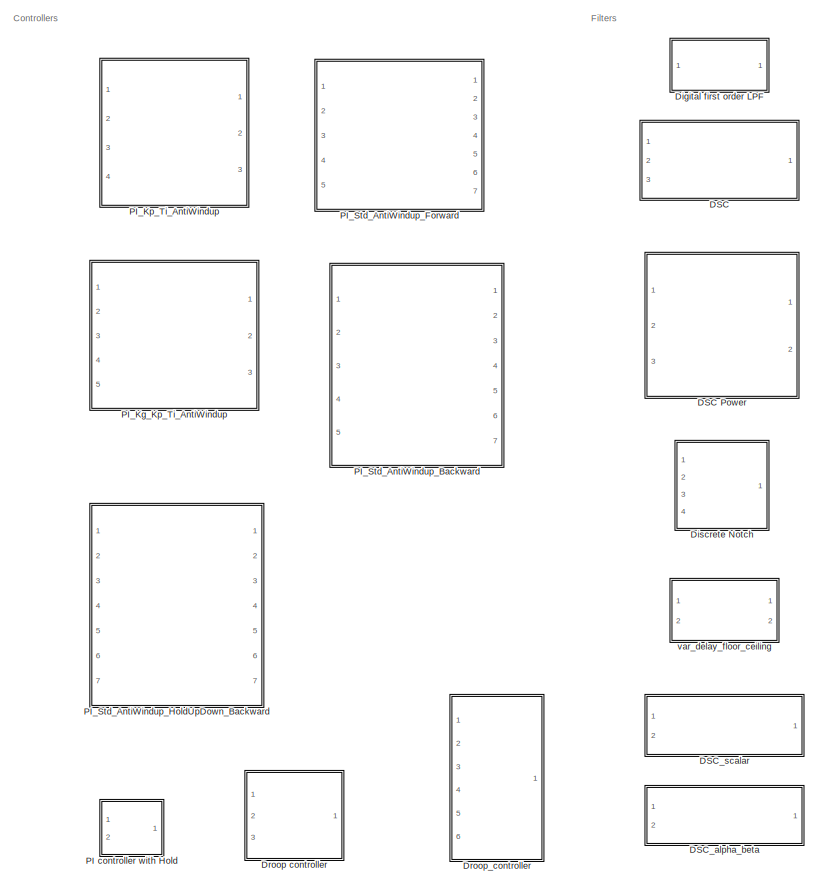
[diagram: root canvas - part 1/2, left side, full height]
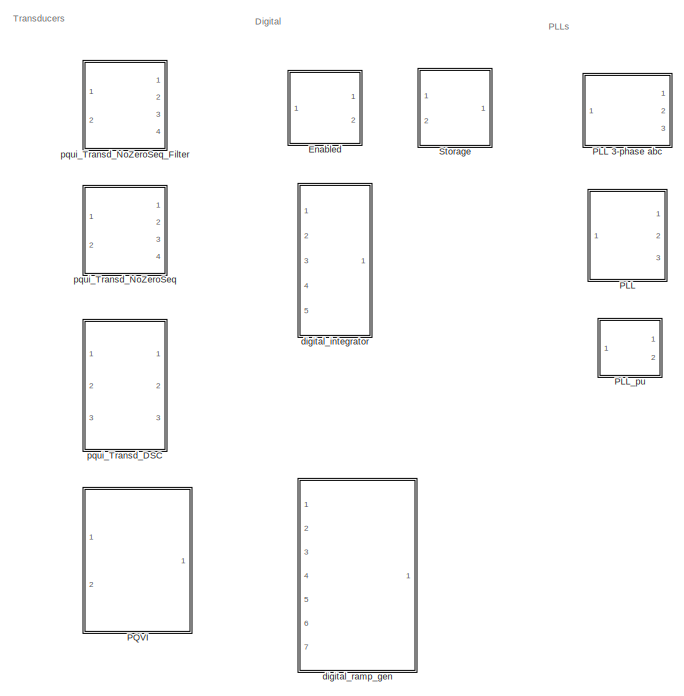
[diagram: root canvas - part 2/2, right side, full height]
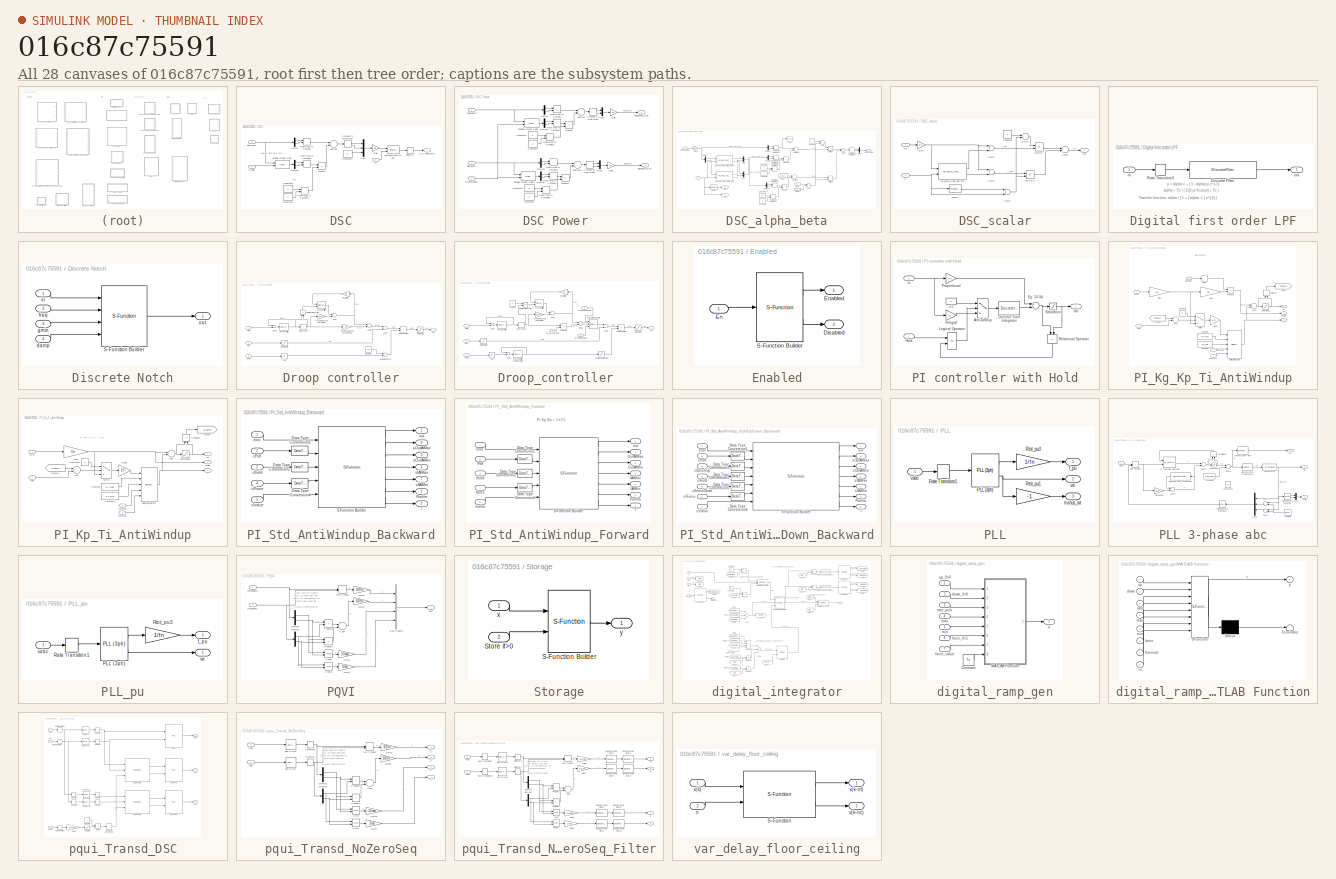
[diagram: thumbnail index - all 28 canvases of the model, root first then tree order]
MODEL slx_016c87c75591
KIND library
CONFIG AbsTol = auto
CONFIG EnableMultiTasking = off
CONFIG FixedStep = auto
CONFIG MaxStep = auto
CONFIG MinStep = auto
CONFIG RelTol = 1e-3
CONFIG SampleTimeConstraint = Unconstrained
CONFIG Solver = VariableStepAuto
CONFIG SolverName = VariableStepAuto
CONFIG StartTime = 0.0
CONFIG StopTime = 10.0
BLOCK [SubSystem] DSC
  Ports = [3, 1]
  RequestExecContextInheritance = off
BLOCK [SubSystem] DSC Power 
  Ports = [3, 2]
  RequestExecContextInheritance = off
BLOCK [ComplexToRealImag] DSC Power /Complex to Real-Imag
  Ports = [1, 2]
BLOCK [ComplexToRealImag] DSC Power /Complex to Real-Imag1
  Ports = [1, 2]
BLOCK [Constant] DSC Power /Constant3
  Value = 0
BLOCK [Constant] DSC Power /Constant4
BLOCK [Constant] DSC Power /Constant5
  Value = 0
BLOCK [Constant] DSC Power /Constant6
BLOCK [Demux] DSC Power /Demux
  DisplayOption = bar
  Outputs = 2
  Ports = [1, 2]
BLOCK [Demux] DSC Power /Demux2
  DisplayOption = bar
  Outputs = 2
  Ports = [1, 2]
BLOCK [Demux] DSC Power /Demux3
  DisplayOption = bar
  Outputs = 2
  Ports = [1, 2]
BLOCK [Demux] DSC Power /Demux5
  DisplayOption = bar
  Outputs = 2
  Ports = [1, 2]
BLOCK [Gain] DSC Power /Gain
  Gain = 0.5
  OutDataTypeStr = Inherit: Inherit via internal rule
  ParamDataTypeStr = Inherit: Inherit via internal rule
  SaturateOnIntegerOverflow = off
BLOCK [Gain] DSC Power /Gain1
  Gain = 0.5
  OutDataTypeStr = Inherit: Inherit via internal rule
  ParamDataTypeStr = Inherit: Inherit via internal rule
  SaturateOnIntegerOverflow = off
BLOCK [Mux] DSC Power /Mux1
  DisplayOption = bar
  Inputs = [1 1]
  Ports = [2, 1]
BLOCK [Mux] DSC Power /Mux2
  DisplayOption = bar
  Inputs = [1 1]
  Ports = [2, 1]
BLOCK [Inport] DSC Power /Nsamp_delay
  IconDisplay = Port number
  Port = 3
BLOCK [Product] DSC Power /Product
  InputSameDT = off
  OutDataTypeStr = Inherit: Inherit via internal rule
  Ports = [2, 1]
  RndMeth = Floor
  SaturateOnIntegerOverflow = off
BLOCK [Product] DSC Power /Product1
  InputSameDT = off
  OutDataTypeStr = Inherit: Inherit via internal rule
  Ports = [2, 1]
  RndMeth = Floor
  SaturateOnIntegerOverflow = off
BLOCK [RealImagToComplex] DSC Power /Real-Imag to Complex
  Ports = [2, 1]
BLOCK [RealImagToComplex] DSC Power /Real-Imag to Complex1
  Ports = [2, 1]
BLOCK [RealImagToComplex] DSC Power /Real-Imag to Complex2
  Ports = [2, 1]
BLOCK [RealImagToComplex] DSC Power /Real-Imag to Complex3
  Ports = [2, 1]
BLOCK [RealImagToComplex] DSC Power /Real-Imag to Complex4
  Ports = [2, 1]
BLOCK [RealImagToComplex] DSC Power /Real-Imag to Complex5
  Ports = [2, 1]
BLOCK [Sum] DSC Power /Subtract
  InputSameDT = off
  OutDataTypeStr = Inherit: Inherit via internal rule
  Ports = [2, 1]
  SaturateOnIntegerOverflow = off
BLOCK [Sum] DSC Power /Subtract1
  InputSameDT = off
  OutDataTypeStr = Inherit: Inherit via internal rule
  Ports = [2, 1]
  SaturateOnIntegerOverflow = off
BLOCK [Delay] DSC Power /Variable Integer Delay
  DelayLength = 200
  DelayLengthSource = Input port
  DelayLengthUpperLimit = 500
  InputPortMap = u0,p1
  Ports = [2, 1]
  SampleTime = Ts
BLOCK [Delay] DSC Power /Variable Integer Delay1
  DelayLength = 200
  DelayLengthSource = Input port
  DelayLengthUpperLimit = 500
  InputPortMap = u0,p1
  Ports = [2, 1]
  SampleTime = Ts
BLOCK [Inport] DSC Power /ialphabeta
  IconDisplay = Port number
  Port = 2
BLOCK [Outport] DSC Power /ialphabeta_DSC
  IconDisplay = Port number
  Port = 2
BLOCK [Inport] DSC Power /valphabeta
  IconDisplay = Port number
BLOCK [Outport] DSC Power /valphabeta_DSC
  IconDisplay = Port number
BLOCK [Reference] DSC/Alpha-Beta-Zero to dq0  REF=powerlib_meascontrol/Transformations/Alpha-Beta-Zero
to dq0
  Ports = [2, 1]
  SourceBlock = powerlib_meascontrol/Transformations/Alpha-Beta-Zero\nto dq0
  SourceProductBaseCode = PS
  SourceProductName = Simscape Power Systems
  SourceType = Alpha-Beta-Zero to dq0 Transformation
BLOCK [ComplexToRealImag] DSC/Complex to Real-Imag
  Ports = [1, 2]
BLOCK [Constant] DSC/Constant1
  Value = 0
BLOCK [Constant] DSC/Constant3
  Value = 0
BLOCK [Constant] DSC/Constant4
BLOCK [Outport] DSC/DSC_alpha_beta
  IconDisplay = Port number
BLOCK [Demux] DSC/Demux
  DisplayOption = bar
  Outputs = 2
  Ports = [1, 2]
BLOCK [Demux] DSC/Demux1
  DisplayOption = bar
  Outputs = 2
  Ports = [1, 2]
BLOCK [Gain] DSC/Gain
  Gain = 0.5
  OutDataTypeStr = Inherit: Inherit via internal rule
  ParamDataTypeStr = Inherit: Inherit via internal rule
  SaturateOnIntegerOverflow = off
BLOCK [Mux] DSC/Mux1
  DisplayOption = bar
  Inputs = [1 1 1]
  Ports = [3, 1]
BLOCK [Inport] DSC/N_delay
  IconDisplay = Port number
  Port = 2
BLOCK [Product] DSC/Product
  InputSameDT = off
  OutDataTypeStr = Inherit: Inherit via internal rule
  Ports = [2, 1]
  RndMeth = Floor
  SaturateOnIntegerOverflow = off
BLOCK [RealImagToComplex] DSC/Real-Imag to Complex
  Ports = [2, 1]
BLOCK [RealImagToComplex] DSC/Real-Imag to Complex1
  Ports = [2, 1]
BLOCK [RealImagToComplex] DSC/Real-Imag to Complex2
  Ports = [2, 1]
BLOCK [Selector] DSC/Selector4
  IndexOptions = Index vector (dialog)
  Indices = [1 2]
  InputPortWidth = 3
  OutputSizes = 1
  Ports = [1, 1]
BLOCK [Sum] DSC/Subtract
  InputSameDT = off
  OutDataTypeStr = Inherit: Inherit via internal rule
  Ports = [2, 1]
  SaturateOnIntegerOverflow = off
BLOCK [Delay] DSC/Variable Integer Delay
  DelayLength = 200
  DelayLengthSource = Input port
  DelayLengthUpperLimit = 500
  InputPortMap = u0,p1
  Ports = [2, 1]
  SampleTime = Ts
BLOCK [Inport] DSC/alpha_beta
  IconDisplay = Port number
BLOCK [Inport] DSC/wt
  IconDisplay = Port number
  Port = 3
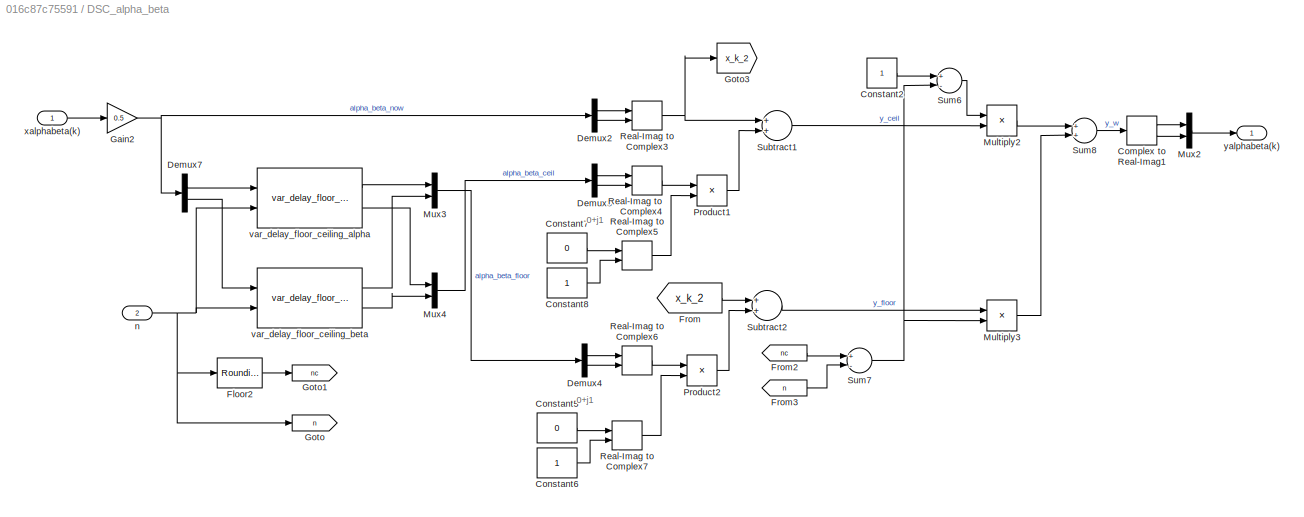
BLOCK [SubSystem] DSC_alpha_beta
  Ports = [2, 1]
  RequestExecContextInheritance = off
BLOCK [ComplexToRealImag] DSC_alpha_beta/Complex to Real-Imag1
  Ports = [1, 2]
BLOCK [Constant] DSC_alpha_beta/Constant2
BLOCK [Constant] DSC_alpha_beta/Constant5
  Value = 0
BLOCK [Constant] DSC_alpha_beta/Constant6
BLOCK [Constant] DSC_alpha_beta/Constant7
  Value = 0
BLOCK [Constant] DSC_alpha_beta/Constant8
BLOCK [Demux] DSC_alpha_beta/Demux2
  DisplayOption = bar
  Outputs = 2
  Ports = [1, 2]
BLOCK [Demux] DSC_alpha_beta/Demux3
  DisplayOption = bar
  Outputs = 2
  Ports = [1, 2]
BLOCK [Demux] DSC_alpha_beta/Demux4
  DisplayOption = bar
  Outputs = 2
  Ports = [1, 2]
BLOCK [Demux] DSC_alpha_beta/Demux7
  DisplayOption = bar
  Outputs = 2
  Ports = [1, 2]
BLOCK [Rounding] DSC_alpha_beta/Floor2
  Operator = ceil
BLOCK [From] DSC_alpha_beta/From
  GotoTag = x_k_2
BLOCK [From] DSC_alpha_beta/From2
  GotoTag = nc
BLOCK [From] DSC_alpha_beta/From3
  GotoTag = n
BLOCK [Gain] DSC_alpha_beta/Gain2
  Gain = 0.5
  OutDataTypeStr = Inherit: Inherit via internal rule
  ParamDataTypeStr = Inherit: Inherit via internal rule
  SaturateOnIntegerOverflow = off
BLOCK [Goto] DSC_alpha_beta/Goto
  GotoTag = n
BLOCK [Goto] DSC_alpha_beta/Goto1
  GotoTag = nc
BLOCK [Goto] DSC_alpha_beta/Goto3
  GotoTag = x_k_2
BLOCK [Product] DSC_alpha_beta/Multiply2
  InputSameDT = off
  OutDataTypeStr = Inherit: Inherit via internal rule
  Ports = [2, 1]
  RndMeth = Floor
  SaturateOnIntegerOverflow = off
BLOCK [Product] DSC_alpha_beta/Multiply3
  InputSameDT = off
  OutDataTypeStr = Inherit: Inherit via internal rule
  Ports = [2, 1]
  RndMeth = Floor
  SaturateOnIntegerOverflow = off
BLOCK [Mux] DSC_alpha_beta/Mux2
  DisplayOption = bar
  Inputs = [1 1]
  Ports = [2, 1]
BLOCK [Mux] DSC_alpha_beta/Mux3
  DisplayOption = bar
  Inputs = [1 1]
  Ports = [2, 1]
BLOCK [Mux] DSC_alpha_beta/Mux4
  DisplayOption = bar
  Inputs = [1 1]
  Ports = [2, 1]
BLOCK [Product] DSC_alpha_beta/Product1
  InputSameDT = off
  OutDataTypeStr = Inherit: Inherit via internal rule
  Ports = [2, 1]
  RndMeth = Floor
  SaturateOnIntegerOverflow = off
BLOCK [Product] DSC_alpha_beta/Product2
  InputSameDT = off
  OutDataTypeStr = Inherit: Inherit via internal rule
  Ports = [2, 1]
  RndMeth = Floor
  SaturateOnIntegerOverflow = off
BLOCK [RealImagToComplex] DSC_alpha_beta/Real-Imag to Complex3
  Ports = [2, 1]
BLOCK [RealImagToComplex] DSC_alpha_beta/Real-Imag to Complex4
  Ports = [2, 1]
BLOCK [RealImagToComplex] DSC_alpha_beta/Real-Imag to Complex5
  Ports = [2, 1]
BLOCK [RealImagToComplex] DSC_alpha_beta/Real-Imag to Complex6
  Ports = [2, 1]
BLOCK [RealImagToComplex] DSC_alpha_beta/Real-Imag to Complex7
  Ports = [2, 1]
BLOCK [Sum] DSC_alpha_beta/Subtract1
  InputSameDT = off
  OutDataTypeStr = Inherit: Inherit via internal rule
  Ports = [2, 1]
  SaturateOnIntegerOverflow = off
BLOCK [Sum] DSC_alpha_beta/Subtract2
  InputSameDT = off
  OutDataTypeStr = Inherit: Inherit via internal rule
  Ports = [2, 1]
  SaturateOnIntegerOverflow = off
BLOCK [Sum] DSC_alpha_beta/Sum6
  InputSameDT = off
  Inputs = +-
  OutDataTypeStr = Inherit: Inherit via internal rule
  Ports = [2, 1]
  SaturateOnIntegerOverflow = off
BLOCK [Sum] DSC_alpha_beta/Sum7
  InputSameDT = off
  Inputs = +-
  OutDataTypeStr = Inherit: Inherit via internal rule
  Ports = [2, 1]
  SaturateOnIntegerOverflow = off
BLOCK [Sum] DSC_alpha_beta/Sum8
  InputSameDT = off
  OutDataTypeStr = Inherit: Inherit via internal rule
  Ports = [2, 1]
  SaturateOnIntegerOverflow = off
BLOCK [Inport] DSC_alpha_beta/n
  IconDisplay = Port number
  Port = 2
BLOCK [Reference] DSC_alpha_beta/var_delay_floor_ceiling_alpha  REF=pwrsysBasic/var_delay_floor_ceiling
  Ports = [2, 2]
  SourceBlock = pwrsysBasic/var_delay_floor_ceiling
  SourceProductName = NTNU Power Systems
  SourceType = Circular buffer with two variable delays (ceiling and floor)
BLOCK [Reference] DSC_alpha_beta/var_delay_floor_ceiling_beta  REF=pwrsysBasic/var_delay_floor_ceiling
  Ports = [2, 2]
  SourceBlock = pwrsysBasic/var_delay_floor_ceiling
  SourceProductName = NTNU Power Systems
  SourceType = Circular buffer with two variable delays (ceiling and floor)
BLOCK [Inport] DSC_alpha_beta/xalphabeta(k)
  IconDisplay = Port number
BLOCK [Outport] DSC_alpha_beta/yalphabeta(k)
  IconDisplay = Port number
BLOCK [SubSystem] DSC_scalar
  Ports = [2, 1]
  RequestExecContextInheritance = off
BLOCK [Constant] DSC_scalar/Constant
BLOCK [Rounding] DSC_scalar/Floor1
  Operator = ceil
BLOCK [Gain] DSC_scalar/Gain
  Gain = 0.5
  OutDataTypeStr = Inherit: Inherit via internal rule
  ParamDataTypeStr = Inherit: Inherit via internal rule
  SaturateOnIntegerOverflow = off
BLOCK [Product] DSC_scalar/Multiply
  InputSameDT = off
  OutDataTypeStr = Inherit: Inherit via internal rule
  Ports = [2, 1]
  RndMeth = Floor
  SaturateOnIntegerOverflow = off
BLOCK [Product] DSC_scalar/Multiply1
  InputSameDT = off
  OutDataTypeStr = Inherit: Inherit via internal rule
  Ports = [2, 1]
  RndMeth = Floor
  SaturateOnIntegerOverflow = off
BLOCK [Sum] DSC_scalar/Sum1
  InputSameDT = off
  Inputs = +-
  OutDataTypeStr = Inherit: Inherit via internal rule
  Ports = [2, 1]
  SaturateOnIntegerOverflow = off
BLOCK [Sum] DSC_scalar/Sum2
  InputSameDT = off
  Inputs = +-
  OutDataTypeStr = Inherit: Inherit via internal rule
  Ports = [2, 1]
  SaturateOnIntegerOverflow = off
BLOCK [Sum] DSC_scalar/Sum3
  InputSameDT = off
  OutDataTypeStr = Inherit: Inherit via internal rule
  Ports = [2, 1]
  SaturateOnIntegerOverflow = off
BLOCK [Sum] DSC_scalar/Sum4
  InputSameDT = off
  OutDataTypeStr = Inherit: Inherit via internal rule
  Ports = [2, 1]
  SaturateOnIntegerOverflow = off
BLOCK [Sum] DSC_scalar/Sum5
  InputSameDT = off
  OutDataTypeStr = Inherit: Inherit via internal rule
  Ports = [2, 1]
  SaturateOnIntegerOverflow = off
BLOCK [Inport] DSC_scalar/n
  IconDisplay = Port number
  Port = 2
BLOCK [Reference] DSC_scalar/var_delay_floor_ceiling  REF=pwrsysBasic/var_delay_floor_ceiling
  Ports = [2, 2]
  SourceBlock = pwrsysBasic/var_delay_floor_ceiling
  SourceProductName = NTNU Power Systems
  SourceType = Circular buffer with two variable delays (ceiling and floor)
BLOCK [Inport] DSC_scalar/x(k)
  IconDisplay = Port number
BLOCK [Outport] DSC_scalar/y(k)
  IconDisplay = Port number
BLOCK [SubSystem] Digital first order LPF
  Ports = [1, 1]
  RequestExecContextInheritance = off
BLOCK [DiscreteFilter] Digital first order LPF/Discrete Filter
  Denominator = [1 Ts/(1/(2*pi*fcutout)+Ts)-1]
  InitialStates = 2*yini
  InputPortMap = u0
  Numerator = [Ts/(1/(2*pi*fcutout)+Ts)]
  Ports = [1, 1]
  SampleTime = Ts
BLOCK [RateTransition] Digital first order LPF/Rate Transition3
  InitialCondition = yini
  OutPortSampleTime = Ts
BLOCK [Inport] Digital first order LPF/in
  IconDisplay = Port number
BLOCK [Outport] Digital first order LPF/out
  IconDisplay = Port number
BLOCK [SubSystem] Discrete Notch
  Ports = [4, 1]
  RequestExecContextInheritance = off
  TreatAsAtomicUnit = on
BLOCK [S-Function] Discrete Notch/S-Function Builder
  EnableBusSupport = off
  FunctionName = notch
  InitFcn = try, set_param(gcb,'FunctionName','notch'), end
  OpenFcn = sfunctionwizard(gcbh)
  Parameters = Ts
  Ports = [4, 1]
  PreSaveFcn = try, set_param(gcb,'FunctionName','notch'), end
  SFcnIsStateOwnerBlock = off
  SFunctionDeploymentMode = off
  SFunctionModules = notch_wrapper
BLOCK [Inport] Discrete Notch/damp
  IconDisplay = Port number
  Port = 4
BLOCK [Inport] Discrete Notch/freq
  IconDisplay = Port number
  Port = 2
BLOCK [Inport] Discrete Notch/gmin
  IconDisplay = Port number
  Port = 3
BLOCK [Inport] Discrete Notch/in
  IconDisplay = Port number
BLOCK [Outport] Discrete Notch/out
  IconDisplay = Port number
BLOCK [SubSystem] Droop controller
  Ports = [3, 1]
  RequestExecContextInheritance = off
BLOCK [Abs] Droop controller/Abs
  SaturateOnIntegerOverflow = off
  ZeroCross = off
BLOCK [Sum] Droop controller/Avoid div by zero
  InputSameDT = off
  OutDataTypeStr = Inherit: Inherit via internal rule
  Ports = [2, 1]
  SaturateOnIntegerOverflow = off
BLOCK [Inport] Droop controller/Comp
  IconDisplay = Port number
  Port = 3
BLOCK [Product] Droop controller/Compensation
  InputSameDT = off
  Inputs = */
  OutDataTypeStr = Inherit: Inherit via internal rule
  Ports = [2, 1]
  RndMeth = Floor
  SaturateOnIntegerOverflow = off
BLOCK [Constant] Droop controller/Constant
  SampleTime = Ts
  Value = 1e-5
BLOCK [DeadZone] Droop controller/Dead-band
  LowerValue = -DB
  UpperValue = DB
BLOCK [Inport] Droop controller/Delta
  IconDisplay = Port number
BLOCK [DiscreteIntegrator] Droop controller/Low-pass filter
  ICPrevOutput = DiscIntNeverNeededParam
  ICPrevScaledInput = DiscIntNeverNeededParam
  InitialConditionSetting = Auto
  LowerSaturationLimit = Refmin/Kp
  Ports = [1, 1]
  SampleTime = Ts
  UpperSaturationLimit = Refmax/Kp
  gainval = flp
BLOCK [Outport] Droop controller/Out
  IconDisplay = Port number
BLOCK [Saturate] Droop controller/Output Limit
  InputPortMap = u0
  LowerLimit = Refmin
  Ports = [1, 1]
  UpperLimit = Refmax
  ZeroCross = off
BLOCK [Gain] Droop controller/Permanent droop (Proportional)
  Gain = Kp
  OutDataTypeStr = Inherit: Inherit via internal rule
  ParamDataTypeStr = Inherit: Inherit via internal rule
  SaturateOnIntegerOverflow = off
BLOCK [Inport] Droop controller/Ref
  IconDisplay = Port number
  Port = 2
BLOCK [RelationalOperator] Droop controller/Relational Operator
  InputSameDT = off
  Operator = ~=
  OutDataTypeStr = boolean
  Ports = [2, 1]
BLOCK [Gain] Droop controller/Reset time
  Gain = 1/Tr
  OutDataTypeStr = Inherit: Inherit via internal rule
  ParamDataTypeStr = Inherit: Inherit via internal rule
  SaturateOnIntegerOverflow = off
BLOCK [Saturate] Droop controller/Setpoint Limit
  InputPortMap = u0
  LowerLimit = Refmin
  Ports = [1, 1]
  UpperLimit = Refmax
  ZeroCross = off
BLOCK [Sum] Droop controller/Sum1
  InputSameDT = off
  Inputs = --
  OutDataTypeStr = Inherit: Inherit via internal rule
  Ports = [2, 1]
  SaturateOnIntegerOverflow = off
BLOCK [Sum] Droop controller/Sum2
  InputSameDT = off
  OutDataTypeStr = Inherit: Inherit via internal rule
  Ports = [2, 1]
  SaturateOnIntegerOverflow = off
BLOCK [Sum] Droop controller/Sum3
  InputSameDT = off
  Inputs = -+
  OutDataTypeStr = Inherit: Inherit via internal rule
  Ports = [2, 1]
  SaturateOnIntegerOverflow = off
BLOCK [Sum] Droop controller/Sum6
  InputSameDT = off
  Inputs = -+
  OutDataTypeStr = Inherit: Inherit via internal rule
  Ports = [2, 1]
  SaturateOnIntegerOverflow = off
BLOCK [Gain] Droop controller/Transient droop (Derivative)
  Gain = Kd/Tr
  OutDataTypeStr = Inherit: Inherit via internal rule
  ParamDataTypeStr = Inherit: Inherit via internal rule
  SaturateOnIntegerOverflow = off
BLOCK [DiscreteIntegrator] Droop controller/Washout filter
  ExternalReset = level
  ICPrevOutput = DiscIntNeverNeededParam
  ICPrevScaledInput = DiscIntNeverNeededParam
  InitialConditionSetting = Auto
  LimitOutput = on
  LowerSaturationLimit = Refmin
  Ports = [2, 1]
  SampleTime = Ts
  UpperSaturationLimit = Refmax
  gainval = 1
BLOCK [SubSystem] Droop_controller 
  Ports = [6, 1]
  RequestExecContextInheritance = off
BLOCK [Abs] Droop_controller /Abs
  SaturateOnIntegerOverflow = off
  ZeroCross = off
BLOCK [Inport] Droop_controller /Comp
  IconDisplay = Port number
  Port = 6
BLOCK [Product] Droop_controller /Compensation
  InputSameDT = off
  Inputs = */
  OutDataTypeStr = Inherit: Inherit via internal rule
  Ports = [2, 1]
  RndMeth = Floor
  SaturateOnIntegerOverflow = off
BLOCK [Saturate] Droop_controller /Compensation Limit
  InputPortMap = u0
  LowerLimit = Compmin
  Ports = [1, 1]
  UpperLimit = Compmax
  ZeroCross = off
BLOCK [Constant] Droop_controller /Constant
  Value = 0
BLOCK [DeadZone] Droop_controller /Dead-band
  LowerValue = -DB
  UpperValue = DB
BLOCK [Inport] Droop_controller /Delta
  IconDisplay = Port number
BLOCK [Inport] Droop_controller /DroopMaxContrib
  IconDisplay = Port number
  Port = 3
BLOCK [Inport] Droop_controller /DroopMinContrib
  IconDisplay = Port number
  Port = 4
BLOCK [Inport] Droop_controller /Kp_perm_droop
  IconDisplay = Port number
  Port = 2
BLOCK [DiscreteIntegrator] Droop_controller /Low-pass filter
  ICPrevOutput = DiscIntNeverNeededParam
  ICPrevScaledInput = DiscIntNeverNeededParam
  InitialConditionSetting = Auto
  LowerSaturationLimit = Refmin/Kp
  Ports = [1, 1]
  SampleTime = Ts
  UpperSaturationLimit = Refmax/Kp
  gainval = flp*2*pi
BLOCK [DiscreteIntegrator] Droop_controller /Low-pass filter compensation
  ICPrevOutput = DiscIntNeverNeededParam
  ICPrevScaledInput = DiscIntNeverNeededParam
  InitialCondition = Compini
  InitialConditionSetting = Auto
  LowerSaturationLimit = Refmin/Kp
  Ports = [1, 1]
  SampleTime = Ts
  UpperSaturationLimit = Refmax/Kp
  gainval = flp_comp*2*pi
BLOCK [Outport] Droop_controller /Out
  IconDisplay = Port number
BLOCK [Saturate] Droop_controller /Output Limit
  InputPortMap = u0
  LowerLimit = Outmin
  Ports = [1, 1]
  UpperLimit = Outmax
  ZeroCross = off
BLOCK [Product] Droop_controller /Product
  InputSameDT = off
  OutDataTypeStr = Inherit: Inherit via internal rule
  Ports = [2, 1]
  RndMeth = Floor
  SaturateOnIntegerOverflow = off
BLOCK [Inport] Droop_controller /Ref
  IconDisplay = Port number
  Port = 5
BLOCK [RelationalOperator] Droop_controller /Relational Operator
  InputSameDT = off
  Operator = ==
  OutDataTypeStr = boolean
  Ports = [2, 1]
BLOCK [Gain] Droop_controller /Reset time
  Gain = 1/Tr
  OutDataTypeStr = Inherit: Inherit via internal rule
  ParamDataTypeStr = Inherit: Inherit via internal rule
  SaturateOnIntegerOverflow = off
BLOCK [Reference] Droop_controller /Saturation Dynamic  REF=simulink/Discontinuities/Saturation
Dynamic
  Ports = [3, 1]
  SourceBlock = simulink/Discontinuities/Saturation\nDynamic
  SourceProductBaseCode = SL
  SourceProductName = Simulink
  SourceType = Saturation Dynamic
BLOCK [Saturate] Droop_controller /Setpoint Limit
  InputPortMap = u0
  LowerLimit = Refmin
  Ports = [1, 1]
  UpperLimit = Refmax
  ZeroCross = off
BLOCK [Sum] Droop_controller /Sum1
  InputSameDT = off
  Inputs = --
  OutDataTypeStr = Inherit: Inherit via internal rule
  Ports = [2, 1]
  SaturateOnIntegerOverflow = off
BLOCK [Sum] Droop_controller /Sum2
  InputSameDT = off
  OutDataTypeStr = Inherit: Inherit via internal rule
  Ports = [2, 1]
  SaturateOnIntegerOverflow = off
BLOCK [Sum] Droop_controller /Sum3
  InputSameDT = off
  Inputs = -+
  OutDataTypeStr = Inherit: Inherit via internal rule
  Ports = [2, 1]
  SaturateOnIntegerOverflow = off
BLOCK [Sum] Droop_controller /Sum4
  InputSameDT = off
  Inputs = -+
  OutDataTypeStr = Inherit: Inherit via internal rule
  Ports = [2, 1]
  SaturateOnIntegerOverflow = off
BLOCK [Sum] Droop_controller /Sum6
  InputSameDT = off
  Inputs = -+
  OutDataTypeStr = Inherit: Inherit via internal rule
  Ports = [2, 1]
  SaturateOnIntegerOverflow = off
BLOCK [Gain] Droop_controller /Transient droop (Derivative)
  Gain = Kd/Tr
  OutDataTypeStr = Inherit: Inherit via internal rule
  ParamDataTypeStr = Inherit: Inherit via internal rule
  SaturateOnIntegerOverflow = off
BLOCK [DiscreteIntegrator] Droop_controller /Washout filter
  ExternalReset = level
  ICPrevOutput = DiscIntNeverNeededParam
  ICPrevScaledInput = DiscIntNeverNeededParam
  InitialConditionSetting = Auto
  LowerSaturationLimit = Refmin
  Ports = [2, 1]
  SampleTime = Ts
  UpperSaturationLimit = Refmax
  gainval = 1
BLOCK [SubSystem] Enabled
  Ports = [1, 2]
  RequestExecContextInheritance = off
  SystemSampleTime = Ts
BLOCK [Outport] Enabled/Disabled
  IconDisplay = Port number
  Port = 2
BLOCK [Inport] Enabled/En
  IconDisplay = Port number
BLOCK [Outport] Enabled/Enabled
  IconDisplay = Port number
BLOCK [S-Function] Enabled/S-Function Builder
  EnableBusSupport = off
  FunctionName = enabled
  InitFcn = try, set_param(gcb,'FunctionName','enabled'), end
  OpenFcn = sfunctionwizard(gcbh)
  Ports = [1, 2]
  PreSaveFcn = try, set_param(gcb,'FunctionName','enabled'), end
  SFcnIsStateOwnerBlock = off
  SFunctionDeploymentMode = off
  SFunctionModules = enabled_wrapper
BLOCK [SubSystem] PI controller with Hold
  Ports = [2, 1]
  RequestExecContextInheritance = off
BLOCK [Switch] PI controller with Hold/Anti-windup
  Criteria = u2 ~= 0
  InputSameDT = off
  SaturateOnIntegerOverflow = off
BLOCK [DiscreteIntegrator] PI controller with Hold/Discrete-Time Integrator
  ICPrevOutput = DiscIntNeverNeededParam
  ICPrevScaledInput = DiscIntNeverNeededParam
  InitialCondition = x0
  InitialConditionSetting = Auto
  LowerSaturationLimit = Min
  Ports = [1, 1]
  SampleTime = Ts
  UpperSaturationLimit = Max
BLOCK [Sum] PI controller with Hold/Eq. 10-X4
  Ports = [2, 1]
BLOCK [Inport] PI controller with Hold/Hold
  IconDisplay = Port number
BLOCK [Inport] PI controller with Hold/In
  IconDisplay = Port number
  Port = 2
BLOCK [Gain] PI controller with Hold/Integral
  Gain = Ki
  OutDataTypeStr = Inherit: Inherit via internal rule
  ParamDataTypeStr = Inherit: Inherit via internal rule
  SaturateOnIntegerOverflow = off
BLOCK [Logic] PI controller with Hold/Logical Operator
  AllPortsSameDT = off
  Operator = OR
  OutDataTypeStr = boolean
  Ports = [2, 1]
BLOCK [Outport] PI controller with Hold/Out
  IconDisplay = Port number
BLOCK [Gain] PI controller with Hold/Proportional
  Gain = Kp
  OutDataTypeStr = Inherit: Inherit via internal rule
  ParamDataTypeStr = Inherit: Inherit via internal rule
  SaturateOnIntegerOverflow = off
BLOCK [RelationalOperator] PI controller with Hold/Relational Operator
  InputSameDT = off
  Operator = ~=
  OutDataTypeStr = boolean
  Ports = [2, 1]
BLOCK [Saturate] PI controller with Hold/Saturation
  InputPortMap = u0
  LowerLimit = Min
  Ports = [1, 1]
  UpperLimit = Max
BLOCK [Constant] PI controller with Hold/v1
  Value = 0
BLOCK [SubSystem] PI_Kg_Kp_Ti_AntiWindup
  MinAlgLoopOccurrences = on
  Ports = [5, 3]
  RTWSystemCode = Reusable function
  RequestExecContextInheritance = off
  SystemSampleTime = Ts
  TreatAsAtomicUnit = on
BLOCK [Sum] PI_Kg_Kp_Ti_AntiWindup/Add1
  InputSameDT = off
  OutDataTypeStr = Inherit: Inherit via internal rule
  Ports = [2, 1]
  SaturateOnIntegerOverflow = off
BLOCK [Sum] PI_Kg_Kp_Ti_AntiWindup/Add9
  InputSameDT = off
  OutDataTypeStr = Inherit: Inherit via internal rule
  Ports = [2, 1]
  SaturateOnIntegerOverflow = off
BLOCK [Constant] PI_Kg_Kp_Ti_AntiWindup/Constant
  Value = PI_max
BLOCK [Constant] PI_Kg_Kp_Ti_AntiWindup/Constant1
  Value = PI_min
BLOCK [Constant] PI_Kg_Kp_Ti_AntiWindup/Constant8
  Value = 0
BLOCK [Inport] PI_Kg_Kp_Ti_AntiWindup/DisableP
  IconDisplay = Port number
  Port = 2
BLOCK [From] PI_Kg_Kp_Ti_AntiWindup/From18
  GotoTag = StopInt
BLOCK [Gain] PI_Kg_Kp_Ti_AntiWindup/Gain1
  Gain = Kp
  OutDataTypeStr = Inherit: Inherit via internal rule
  ParamDataTypeStr = Inherit: Inherit via internal rule
  SaturateOnIntegerOverflow = off
BLOCK [Gain] PI_Kg_Kp_Ti_AntiWindup/Gain7
  Gain = Kg
  OutDataTypeStr = Inherit: Inherit via internal rule
  ParamDataTypeStr = Inherit: Inherit via internal rule
  SaturateOnIntegerOverflow = off
BLOCK [Gain] PI_Kg_Kp_Ti_AntiWindup/Gain9
  Gain = 1/Ti
  OutDataTypeStr = Inherit: Inherit via internal rule
  ParamDataTypeStr = Inherit: Inherit via internal rule
  SaturateOnIntegerOverflow = off
BLOCK [Goto] PI_Kg_Kp_Ti_AntiWindup/Goto3
  GotoTag = StopInt
BLOCK [Outport] PI_Kg_Kp_Ti_AntiWindup/I
  IconDisplay = Port number
  Port = 3
BLOCK [Inport] PI_Kg_Kp_Ti_AntiWindup/Ihold
  IconDisplay = Port number
  Port = 3
BLOCK [RelationalOperator] PI_Kg_Kp_Ti_AntiWindup/NotEqual
  InputSameDT = off
  Operator = ~=
  OutDataTypeStr = boolean
  Ports = [2, 1]
BLOCK [Product] PI_Kg_Kp_Ti_AntiWindup/Product
  InputSameDT = off
  OutDataTypeStr = Inherit: Inherit via internal rule
  Ports = [2, 1]
  RndMeth = Floor
  SaturateOnIntegerOverflow = off
BLOCK [Outport] PI_Kg_Kp_Ti_AntiWindup/Punlim
  IconDisplay = Port number
  Port = 2
BLOCK [Relay] PI_Kg_Kp_Ti_AntiWindup/Relay
  InputProcessing = Elements as channels (sample based)
  OffOutputValue = 1
  OffSwitchValue = 0.4
  OnOutputValue = 0
  OnSwitchValue = 0.6
BLOCK [Saturate] PI_Kg_Kp_Ti_AntiWindup/Saturation1
  InputPortMap = u0
  LowerLimit = PI_min
  Ports = [1, 1]
  UpperLimit = PI_max
BLOCK [Switch] PI_Kg_Kp_Ti_AntiWindup/Switch
  Criteria = u2 > Threshold
  InputSameDT = off
  SaturateOnIntegerOverflow = off
BLOCK [Reference] PI_Kg_Kp_Ti_AntiWindup/digital_integrator  REF=pwrsysBasic/digital_integrator
  Ports = [5, 1]
  SourceBlock = pwrsysBasic/digital_integrator
  SourceProductName = NTNU Power Systems
  SourceType = Digital integrator
BLOCK [Inport] PI_Kg_Kp_Ti_AntiWindup/error
  IconDisplay = Port number
BLOCK [Inport] PI_Kg_Kp_Ti_AntiWindup/force_int
  IconDisplay = Port number
  Port = 4
BLOCK [Inport] PI_Kg_Kp_Ti_AntiWindup/force_val
  IconDisplay = Port number
  Port = 5
BLOCK [Outport] PI_Kg_Kp_Ti_AntiWindup/out
  IconDisplay = Port number
BLOCK [SubSystem] PI_Kp_Ti_AntiWindup
  MinAlgLoopOccurrences = on
  Ports = [4, 3]
  RTWSystemCode = Reusable function
  RequestExecContextInheritance = off
  SystemSampleTime = Ts
  TreatAsAtomicUnit = on
BLOCK [Sum] PI_Kp_Ti_AntiWindup/Add1
  InputSameDT = off
  OutDataTypeStr = Inherit: Inherit via internal rule
  Ports = [2, 1]
  SaturateOnIntegerOverflow = off
BLOCK [Sum] PI_Kp_Ti_AntiWindup/Add9
  InputSameDT = off
  OutDataTypeStr = Inherit: Inherit via internal rule
  Ports = [2, 1]
  SaturateOnIntegerOverflow = off
BLOCK [Constant] PI_Kp_Ti_AntiWindup/Constant
  Value = PI_max
BLOCK [Constant] PI_Kp_Ti_AntiWindup/Constant1
  Value = PI_min
BLOCK [Constant] PI_Kp_Ti_AntiWindup/Constant8
  Value = 0
BLOCK [From] PI_Kp_Ti_AntiWindup/From18
  GotoTag = StopInt
BLOCK [Gain] PI_Kp_Ti_AntiWindup/Gain7
  Gain = Kp
  OutDataTypeStr = Inherit: Inherit via internal rule
  ParamDataTypeStr = Inherit: Inherit via internal rule
  SaturateOnIntegerOverflow = off
BLOCK [Gain] PI_Kp_Ti_AntiWindup/Gain9
  Gain = 1/Ti
  OutDataTypeStr = Inherit: Inherit via internal rule
  ParamDataTypeStr = Inherit: Inherit via internal rule
  SaturateOnIntegerOverflow = off
BLOCK [Goto] PI_Kp_Ti_AntiWindup/Goto3
  GotoTag = StopInt
BLOCK [Outport] PI_Kp_Ti_AntiWindup/I
  IconDisplay = Port number
  Port = 3
BLOCK [Inport] PI_Kp_Ti_AntiWindup/Ihold
  IconDisplay = Port number
  Port = 2
BLOCK [RelationalOperator] PI_Kp_Ti_AntiWindup/NotEqual
  InputSameDT = off
  Operator = ~=
  OutDataTypeStr = boolean
  Ports = [2, 1]
BLOCK [Outport] PI_Kp_Ti_AntiWindup/Punlim
  IconDisplay = Port number
  Port = 2
BLOCK [Saturate] PI_Kp_Ti_AntiWindup/Saturation1
  InputPortMap = u0
  LowerLimit = PI_min
  Ports = [1, 1]
  UpperLimit = PI_max
BLOCK [Switch] PI_Kp_Ti_AntiWindup/Switch
  Criteria = u2 > Threshold
  InputSameDT = off
  SaturateOnIntegerOverflow = off
BLOCK [Reference] PI_Kp_Ti_AntiWindup/digital_integrator  REF=pwrsysBasic/digital_integrator
  Ports = [5, 1]
  SourceBlock = pwrsysBasic/digital_integrator
  SourceProductName = NTNU Power Systems
  SourceType = Digital integrator
BLOCK [Inport] PI_Kp_Ti_AntiWindup/error
  IconDisplay = Port number
BLOCK [Inport] PI_Kp_Ti_AntiWindup/force_int
  IconDisplay = Port number
  Port = 3
BLOCK [Inport] PI_Kp_Ti_AntiWindup/force_val
  IconDisplay = Port number
  Port = 4
BLOCK [Outport] PI_Kp_Ti_AntiWindup/out
  IconDisplay = Port number
BLOCK [SubSystem] PI_Std_AntiWindup_Backward
  Ports = [5, 7]
  RequestExecContextInheritance = off
BLOCK [DataTypeConversion] PI_Std_AntiWindup_Backward/Data Type Conversion1
  OutDataTypeStr = double
  RndMeth = Floor
  SaturateOnIntegerOverflow = off
BLOCK [DataTypeConversion] PI_Std_AntiWindup_Backward/Data Type Conversion2
  OutDataTypeStr = double
  RndMeth = Floor
  SaturateOnIntegerOverflow = off
BLOCK [DataTypeConversion] PI_Std_AntiWindup_Backward/Data Type Conversion4
  OutDataTypeStr = double
  RndMeth = Floor
  SaturateOnIntegerOverflow = off
BLOCK [Outport] PI_Std_AntiWindup_Backward/I
  IconDisplay = Port number
  Port = 3
BLOCK [Outport] PI_Std_AntiWindup_Backward/Punlim
  IconDisplay = Port number
  Port = 2
BLOCK [S-Function] PI_Std_AntiWindup_Backward/S-Function Builder
  EnableBusSupport = off
  FunctionName = pi_std_antiwindup
  InitFcn = try, set_param(gcb,'FunctionName','pi_std_antiwindup'), end
  OpenFcn = sfunctionwizard(gcbh)
  Parameters = Ts,Kg,Kp,Ti,outMax,outMin
  Ports = [5, 7]
  PreSaveFcn = try, set_param(gcb,'FunctionName','pi_std_antiwindup'), end
  SFcnIsStateOwnerBlock = off
  SFunctionDeploymentMode = off
  SFunctionModules = pi_std_antiwindup_wrapper
BLOCK [Inport] PI_Std_AntiWindup_Backward/cIForce
  IconDisplay = Port number
  Port = 4
BLOCK [Inport] PI_Std_AntiWindup_Backward/cIhold
  IconDisplay = Port number
  Port = 3
BLOCK [Inport] PI_Std_AntiWindup_Backward/cIvalue
  IconDisplay = Port number
  Port = 5
BLOCK [Inport] PI_Std_AntiWindup_Backward/cPoff
  IconDisplay = Port number
  Port = 2
BLOCK [Inport] PI_Std_AntiWindup_Backward/error
  IconDisplay = Port number
BLOCK [Outport] PI_Std_AntiWindup_Backward/out
  IconDisplay = Port number
BLOCK [Outport] PI_Std_AntiWindup_Backward/sIAtMax
  IconDisplay = Port number
  Port = 6
BLOCK [Outport] PI_Std_AntiWindup_Backward/sIAtMin
  IconDisplay = Port number
  Port = 7
BLOCK [Outport] PI_Std_AntiWindup_Backward/sOutAtMax
  IconDisplay = Port number
  Port = 4
BLOCK [Outport] PI_Std_AntiWindup_Backward/sOutAtMin
  IconDisplay = Port number
  Port = 5
BLOCK [SubSystem] PI_Std_AntiWindup_Forward
  MinAlgLoopOccurrences = on
  Ports = [5, 7]
  RTWSystemCode = Reusable function
  RequestExecContextInheritance = off
  SystemSampleTime = Ts
BLOCK [DataTypeConversion] PI_Std_AntiWindup_Forward/Data Type Conversion1
  OutDataTypeStr = double
  RndMeth = Floor
  SaturateOnIntegerOverflow = off
BLOCK [DataTypeConversion] PI_Std_AntiWindup_Forward/Data Type Conversion2
  OutDataTypeStr = double
  RndMeth = Floor
  SaturateOnIntegerOverflow = off
BLOCK [DataTypeConversion] PI_Std_AntiWindup_Forward/Data Type Conversion4
  OutDataTypeStr = double
  RndMeth = Floor
  SaturateOnIntegerOverflow = off
BLOCK [Outport] PI_Std_AntiWindup_Forward/I
  IconDisplay = Port number
  Port = 3
BLOCK [Outport] PI_Std_AntiWindup_Forward/IAtMax
  IconDisplay = Port number
  Port = 6
BLOCK [Outport] PI_Std_AntiWindup_Forward/IAtMin
  IconDisplay = Port number
  Port = 7
BLOCK [Inport] PI_Std_AntiWindup_Forward/Iforce
  IconDisplay = Port number
  Port = 4
BLOCK [Inport] PI_Std_AntiWindup_Forward/Ihold
  IconDisplay = Port number
  Port = 3
BLOCK [Inport] PI_Std_AntiWindup_Forward/Ivalue
  IconDisplay = Port number
  Port = 5
BLOCK [Outport] PI_Std_AntiWindup_Forward/OutAtMax
  IconDisplay = Port number
  Port = 4
BLOCK [Outport] PI_Std_AntiWindup_Forward/OutAtMin
  IconDisplay = Port number
  Port = 5
BLOCK [Inport] PI_Std_AntiWindup_Forward/Poff
  IconDisplay = Port number
  Port = 2
BLOCK [Outport] PI_Std_AntiWindup_Forward/Punlim
  IconDisplay = Port number
  Port = 2
BLOCK [S-Function] PI_Std_AntiWindup_Forward/S-Function Builder
  EnableBusSupport = off
  FunctionName = pi_std_antiwindup
  InitFcn = try, set_param(gcb,'FunctionName','pi_std_antiwindup'), end
  OpenFcn = sfunctionwizard(gcbh)
  Parameters = Ts,Kg,Kp,Ti,outMax,outMin
  Ports = [5, 7]
  PreSaveFcn = try, set_param(gcb,'FunctionName','pi_std_antiwindup'), end
  SFcnIsStateOwnerBlock = off
  SFunctionDeploymentMode = off
  SFunctionModules = pi_std_antiwindup_wrapper
BLOCK [Inport] PI_Std_AntiWindup_Forward/error
  IconDisplay = Port number
BLOCK [Outport] PI_Std_AntiWindup_Forward/out
  IconDisplay = Port number
BLOCK [SubSystem] PI_Std_AntiWindup_HoldUpDown_Backward
  Ports = [7, 7]
  RequestExecContextInheritance = off
BLOCK [DataTypeConversion] PI_Std_AntiWindup_HoldUpDown_Backward/Data Type Conversion1
  OutDataTypeStr = double
  RndMeth = Floor
  SaturateOnIntegerOverflow = off
BLOCK [DataTypeConversion] PI_Std_AntiWindup_HoldUpDown_Backward/Data Type Conversion2
  OutDataTypeStr = double
  RndMeth = Floor
  SaturateOnIntegerOverflow = off
BLOCK [DataTypeConversion] PI_Std_AntiWindup_HoldUpDown_Backward/Data Type Conversion3
  OutDataTypeStr = double
  RndMeth = Floor
  SaturateOnIntegerOverflow = off
BLOCK [DataTypeConversion] PI_Std_AntiWindup_HoldUpDown_Backward/Data Type Conversion4
  OutDataTypeStr = double
  RndMeth = Floor
  SaturateOnIntegerOverflow = off
BLOCK [DataTypeConversion] PI_Std_AntiWindup_HoldUpDown_Backward/Data Type Conversion5
  OutDataTypeStr = double
  RndMeth = Floor
  SaturateOnIntegerOverflow = off
BLOCK [Outport] PI_Std_AntiWindup_HoldUpDown_Backward/I
  IconDisplay = Port number
  Port = 3
BLOCK [Outport] PI_Std_AntiWindup_HoldUpDown_Backward/Punlim
  IconDisplay = Port number
  Port = 2
BLOCK [S-Function] PI_Std_AntiWindup_HoldUpDown_Backward/S-Function Builder
  EnableBusSupport = off
  FunctionName = pi_std_antiwindup_holdUpDown
  InitFcn = try, set_param(gcb,'FunctionName','pi_std_antiwindup_holdUpDown'), end
  OpenFcn = sfunctionwizard(gcbh)
  Parameters = Ts,Kg,Kp,Ti,outMax,outMin
  Ports = [7, 7]
  PreSaveFcn = try, set_param(gcb,'FunctionName','pi_std_antiwindup_holdUpDown'), end
  SFcnIsStateOwnerBlock = off
  SFunctionDeploymentMode = off
  SFunctionModules = pi_std_antiwindup_holdUpDown_wrapper
BLOCK [Inport] PI_Std_AntiWindup_HoldUpDown_Backward/cIForce
  IconDisplay = Port number
  Port = 6
BLOCK [Inport] PI_Std_AntiWindup_HoldUpDown_Backward/cIblockDown
  IconDisplay = Port number
  Port = 5
BLOCK [Inport] PI_Std_AntiWindup_HoldUpDown_Backward/cIblockUp
  IconDisplay = Port number
  Port = 3
BLOCK [Inport] PI_Std_AntiWindup_HoldUpDown_Backward/cIhold
  IconDisplay = Port number
  Port = 4
BLOCK [Inport] PI_Std_AntiWindup_HoldUpDown_Backward/cIvalue
  IconDisplay = Port number
  Port = 7
BLOCK [Inport] PI_Std_AntiWindup_HoldUpDown_Backward/cPoff
  IconDisplay = Port number
  Port = 2
BLOCK [Inport] PI_Std_AntiWindup_HoldUpDown_Backward/error
  IconDisplay = Port number
BLOCK [Outport] PI_Std_AntiWindup_HoldUpDown_Backward/out
  IconDisplay = Port number
BLOCK [Outport] PI_Std_AntiWindup_HoldUpDown_Backward/sIAtMax
  IconDisplay = Port number
  Port = 6
BLOCK [Outport] PI_Std_AntiWindup_HoldUpDown_Backward/sIAtMin
  IconDisplay = Port number
  Port = 7
BLOCK [Outport] PI_Std_AntiWindup_HoldUpDown_Backward/sOutAtMax
  IconDisplay = Port number
  Port = 4
BLOCK [Outport] PI_Std_AntiWindup_HoldUpDown_Backward/sOutAtMin
  IconDisplay = Port number
  Port = 5
BLOCK [SubSystem] PLL
  Ports = [1, 3]
  RequestExecContextInheritance = off
BLOCK [SubSystem] PLL 3-phase abc
  Ports = [1, 3]
  RequestExecContextInheritance = off
BLOCK [Constant] PLL 3-phase abc/120deg
  SampleTime = Ts
  Value = 2/3*pi
BLOCK [RelationalOperator] PLL 3-phase abc/Anti-windup
  InputSameDT = off
  Operator = ~=
  OutDataTypeStr = boolean
  Ports = [2, 1]
BLOCK [Gain] PLL 3-phase abc/Derivative
  Gain = Kd/Tr
  OutDataTypeStr = Inherit: Inherit via internal rule
  ParamDataTypeStr = Inherit: Inherit via internal rule
  SaturateOnIntegerOverflow = off
BLOCK [DiscreteIntegrator] PLL 3-phase abc/Discrete-Time Integrator
  ICPrevOutput = DiscIntNeverNeededParam
  ICPrevScaledInput = DiscIntNeverNeededParam
  InitialConditionSetting = Auto
  LimitOutput = on
  LowerSaturationLimit = -2*pi*fdev
  Ports = [1, 1]
  SampleTime = Ts
  UpperSaturationLimit = 2*pi*fdev
  gainval = 1/Tr
BLOCK [DiscreteIntegrator] PLL 3-phase abc/Discrete-Time Integrator1
  ICPrevOutput = DiscIntNeverNeededParam
  ICPrevScaledInput = DiscIntNeverNeededParam
  InitialCondition = wt0
  InitialConditionSetting = Auto
  LowerSaturationLimit = -2*pi*fdev
  Ports = [1, 1]
  SampleTime = Ts
  UpperSaturationLimit = 2*pi*fdev
  gainval = 1
BLOCK [DotProduct] PLL 3-phase abc/Dot Product
  OutDataTypeStr = Inherit: Inherit via internal rule
BLOCK [Integrator] PLL 3-phase abc/Integrator
  Commented = on
  InitialCondition = wt0
  LowerSaturationLimit = -1
  Ports = [1, 1]
  UpperSaturationLimit = 1
  ZeroCross = off
BLOCK [Mux] PLL 3-phase abc/Mux
  DisplayOption = bar
  Inputs = 2
  Ports = [2, 1]
BLOCK [Mux] PLL 3-phase abc/Mux1
  DisplayOption = bar
  Inputs = 3
  Ports = [3, 1]
BLOCK [Reference] PLL 3-phase abc/PI controller with Hold  REF=pwrsysBasic/PI controller 
with Hold
  Ports = [2, 1]
  SourceBlock = pwrsysBasic/PI controller \nwith Hold
  SourceProductName = NTNU Power Systems
  SourceType = PI controller with anti-windup
BLOCK [Saturate] PLL 3-phase abc/Saturation
  InputPortMap = u0
  LowerLimit = -2*pi*fdev
  Ports = [1, 1]
  UpperLimit = 2*pi*fdev
BLOCK [Reference] PLL 3-phase abc/Second-Order Filter  REF=powerlib_meascontrol/Filters/Second-Order
Filter
  Ports = [1, 1]
  SourceBlock = powerlib_meascontrol/Filters/Second-Order\nFilter
  SourceProductBaseCode = PS
  SourceProductName = Simscape Power Systems
  SourceType = Second-Order Filter
BLOCK [Sum] PLL 3-phase abc/Sum1
  InputSameDT = off
  OutDataTypeStr = Inherit: Inherit via internal rule
  Ports = [2, 1]
  SaturateOnIntegerOverflow = off
BLOCK [Sum] PLL 3-phase abc/Sum2
  InputSameDT = off
  Inputs = +-
  OutDataTypeStr = Inherit: Inherit via internal rule
  Ports = [2, 1]
  SaturateOnIntegerOverflow = off
BLOCK [Sum] PLL 3-phase abc/Sum3
  InputSameDT = off
  OutDataTypeStr = Inherit: Inherit via internal rule
  Ports = [2, 1]
  SaturateOnIntegerOverflow = off
BLOCK [Sum] PLL 3-phase abc/Sum4
  InputSameDT = off
  Inputs = +-
  OutDataTypeStr = Inherit: Inherit via internal rule
  Ports = [2, 1]
  SaturateOnIntegerOverflow = off
BLOCK [Sum] PLL 3-phase abc/Sum6
  InputSameDT = off
  Inputs = -+
  OutDataTypeStr = Inherit: Inherit via internal rule
  Ports = [2, 1]
  SaturateOnIntegerOverflow = off
BLOCK [Trigonometry] PLL 3-phase abc/Trigonometric Function
  ApproximationMethod = CORDIC
  Operator = sincos
  Ports = [1, 2]
BLOCK [Trigonometry] PLL 3-phase abc/Trigonometric Function1
  ApproximationMethod = CORDIC
  Ports = [1, 1]
BLOCK [Inport] PLL 3-phase abc/Vabc
  IconDisplay = Port number
BLOCK [MATLABFcn] PLL 3-phase abc/Wrap to pi
  MATLABFcn = wrapToPi
  Ports = [1, 1]
BLOCK [Outport] PLL 3-phase abc/scwt
  IconDisplay = Port number
  Port = 3
BLOCK [Outport] PLL 3-phase abc/w
  IconDisplay = Port number
BLOCK [Constant] PLL 3-phase abc/w rated
  SampleTime = Ts
  Value = 2*pi*fnom
BLOCK [Outport] PLL 3-phase abc/wt
  IconDisplay = Port number
  Port = 2
BLOCK [Reference] PLL/PLL (3ph)  REF=powerlib_meascontrol/PLL/PLL
(3ph)
  Ports = [1, 2]
  SourceBlock = powerlib_meascontrol/PLL/PLL\n(3ph)
  SourceProductBaseCode = PS
  SourceProductName = Simscape Power Systems
  SourceType = PLL (3ph)
BLOCK [RateTransition] PLL/Rate Transition1
  OutPortSampleTime = Ts
BLOCK [Gain] PLL/Rtot_pu1
  Gain = -1
BLOCK [Gain] PLL/Rtot_pu3
  Gain = 1/fn
BLOCK [Outport] PLL/f_pu
  IconDisplay = Port number
BLOCK [Outport] PLL/minus_wt
  IconDisplay = Port number
  Port = 3
BLOCK [Inport] PLL/vabc
  IconDisplay = Port number
BLOCK [Outport] PLL/wt
  IconDisplay = Port number
  Port = 2
BLOCK [SubSystem] PLL_pu
  Ports = [1, 2]
  RequestExecContextInheritance = off
BLOCK [Reference] PLL_pu/PLL (3ph)  REF=powerlib_meascontrol/PLL/PLL
(3ph)
  Ports = [1, 2]
  SourceBlock = powerlib_meascontrol/PLL/PLL\n(3ph)
  SourceProductBaseCode = PS
  SourceProductName = Simscape Power Systems
  SourceType = PLL (3ph)
BLOCK [RateTransition] PLL_pu/Rate Transition1
  OutPortSampleTime = Ts
BLOCK [Gain] PLL_pu/Rtot_pu3
  Gain = 1/fn
BLOCK [Outport] PLL_pu/f_pu
  IconDisplay = Port number
  Port = 2
BLOCK [Inport] PLL_pu/vabc
  IconDisplay = Port number
BLOCK [Outport] PLL_pu/wt
  IconDisplay = Port number
BLOCK [SubSystem] PQVI
  Ports = [2, 1]
  RequestExecContextInheritance = off
BLOCK [Sum] PQVI/Add3
  InputSameDT = off
  Inputs = +-
  OutDataTypeStr = Inherit: Inherit via internal rule
  Ports = [2, 1]
  SaturateOnIntegerOverflow = off
BLOCK [BusCreator] PQVI/Bus Creator
  DisplayOption = bar
  InheritFromInputs = on
  Inputs = 4
  Ports = [4, 1]
BLOCK [Demux] PQVI/Demux1
  DisplayOption = bar
  Outputs = 2
  Ports = [1, 2]
BLOCK [Demux] PQVI/Demux4
  DisplayOption = bar
  Outputs = 2
  Ports = [1, 2]
BLOCK [DotProduct] PQVI/Dot Product
  OutDataTypeStr = Inherit: Inherit via internal rule
BLOCK [Gain] PQVI/Gain1
  Gain = 3/2/Sn
  OutDataTypeStr = Inherit: Inherit via internal rule
  ParamDataTypeStr = Inherit: Inherit via internal rule
  SaturateOnIntegerOverflow = off
BLOCK [Gain] PQVI/Gain2
  Gain = 3/2/Sn
  OutDataTypeStr = Inherit: Inherit via internal rule
  ParamDataTypeStr = Inherit: Inherit via internal rule
  SaturateOnIntegerOverflow = off
BLOCK [Gain] PQVI/Gain3
  Gain = 1/Uanp
  OutDataTypeStr = Inherit: Inherit via internal rule
  ParamDataTypeStr = Inherit: Inherit via internal rule
  SaturateOnIntegerOverflow = off
BLOCK [Gain] PQVI/Gain4
  Gain = 1/Iap
  OutDataTypeStr = Inherit: Inherit via internal rule
  ParamDataTypeStr = Inherit: Inherit via internal rule
  SaturateOnIntegerOverflow = off
BLOCK [Math] PQVI/Hypot
  Operator = hypot
  Ports = [2, 1]
  RndMeth = Zero
BLOCK [Math] PQVI/Hypot1
  Operator = hypot
  Ports = [2, 1]
  RndMeth = Zero
BLOCK [Product] PQVI/Product3
  InputSameDT = off
  OutDataTypeStr = Inherit: Inherit via internal rule
  Ports = [2, 1]
  RndMeth = Floor
  SaturateOnIntegerOverflow = off
BLOCK [Product] PQVI/Product4
  InputSameDT = off
  OutDataTypeStr = Inherit: Inherit via internal rule
  Ports = [2, 1]
  RndMeth = Floor
  SaturateOnIntegerOverflow = off
BLOCK [Inport] PQVI/ialphabeta
  IconDisplay = Port number
  Port = 2
BLOCK [Outport] PQVI/pqvi
  IconDisplay = Port number
BLOCK [Inport] PQVI/valphabeta
  IconDisplay = Port number
BLOCK [SubSystem] Storage
  Ports = [2, 1]
  RequestExecContextInheritance = off
  SystemSampleTime = Ts
BLOCK [S-Function] Storage/S-Function Builder
  EnableBusSupport = off
  FunctionName = store
  InitFcn = try, set_param(gcb,'FunctionName','store'), end
  OpenFcn = sfunctionwizard(gcbh)
  Ports = [2, 1]
  PreSaveFcn = try, set_param(gcb,'FunctionName','store'), end
  SFcnIsStateOwnerBlock = off
  SFunctionDeploymentMode = off
  SFunctionModules = store_wrapper
BLOCK [Inport] Storage/Store if>0
  IconDisplay = Port number
  Port = 2
BLOCK [Inport] Storage/x
  IconDisplay = Port number
BLOCK [Outport] Storage/y
  IconDisplay = Port number
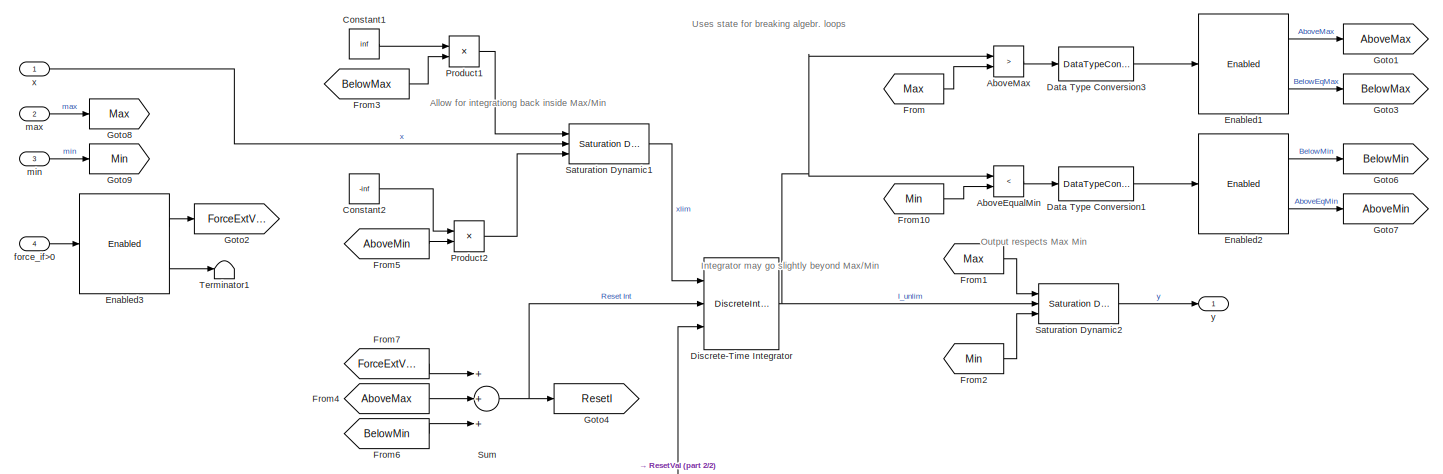
[diagram: digital_integrator - part 1/2, full width, top band]
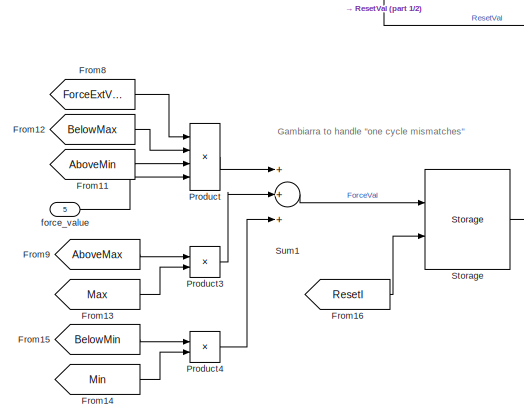
[diagram: digital_integrator - part 2/2, bottom center region]
BLOCK [SubSystem] digital_integrator
  Ports = [5, 1]
  RequestExecContextInheritance = off
  SystemSampleTime = Ts
BLOCK [RelationalOperator] digital_integrator/AboveEqualMin
  InputSameDT = off
  Operator = <
  OutDataTypeStr = boolean
  Ports = [2, 1]
BLOCK [RelationalOperator] digital_integrator/AboveMax
  InputSameDT = off
  Operator = >
  OutDataTypeStr = boolean
  Ports = [2, 1]
BLOCK [Constant] digital_integrator/Constant1
  Value = inf
BLOCK [Constant] digital_integrator/Constant2
  Value = -inf
BLOCK [DataTypeConversion] digital_integrator/Data Type Conversion1
  OutDataTypeStr = double
  RndMeth = Floor
  SaturateOnIntegerOverflow = off
BLOCK [DataTypeConversion] digital_integrator/Data Type Conversion3
  OutDataTypeStr = double
  RndMeth = Floor
  SaturateOnIntegerOverflow = off
BLOCK [DiscreteIntegrator] digital_integrator/Discrete-Time Integrator
  ExternalReset = level
  ICPrevOutput = DiscIntNeverNeededParam
  ICPrevScaledInput = DiscIntNeverNeededParam
  IgnoreLimit = on
  InitialConditionSetting = Auto
  InitialConditionSource = external
  Ports = [3, 1]
  SampleTime = Ts
BLOCK [Reference] digital_integrator/Enabled1  REF=pwrsysBasic/Enabled
  Ports = [1, 2]
  SourceBlock = pwrsysBasic/Enabled
  SourceProductName = NTNU Power Systems
  SourceType = Enabled block
BLOCK [Reference] digital_integrator/Enabled2  REF=pwrsysBasic/Enabled
  Ports = [1, 2]
  SourceBlock = pwrsysBasic/Enabled
  SourceProductName = NTNU Power Systems
  SourceType = Enabled block
BLOCK [Reference] digital_integrator/Enabled3  REF=pwrsysBasic/Enabled
  Ports = [1, 2]
  SourceBlock = pwrsysBasic/Enabled
  SourceProductName = NTNU Power Systems
  SourceType = Enabled block
BLOCK [From] digital_integrator/From
  GotoTag = Max
BLOCK [From] digital_integrator/From1
  GotoTag = Max
BLOCK [From] digital_integrator/From10
  GotoTag = Min
BLOCK [From] digital_integrator/From11
  GotoTag = AboveMin
BLOCK [From] digital_integrator/From12
  GotoTag = BelowMax
BLOCK [From] digital_integrator/From13
  GotoTag = Max
BLOCK [From] digital_integrator/From14
  GotoTag = Min
BLOCK [From] digital_integrator/From15
  GotoTag = BelowMin
BLOCK [From] digital_integrator/From16
  GotoTag = ResetI
BLOCK [From] digital_integrator/From2
  GotoTag = Min
BLOCK [From] digital_integrator/From3
  GotoTag = BelowMax
BLOCK [From] digital_integrator/From4
  GotoTag = AboveMax
BLOCK [From] digital_integrator/From5
  GotoTag = AboveMin
BLOCK [From] digital_integrator/From6
  GotoTag = BelowMin
BLOCK [From] digital_integrator/From7
  GotoTag = ForceExtVal
BLOCK [From] digital_integrator/From8
  GotoTag = ForceExtVal
BLOCK [From] digital_integrator/From9
  GotoTag = AboveMax
BLOCK [Goto] digital_integrator/Goto1
  GotoTag = AboveMax
BLOCK [Goto] digital_integrator/Goto2
  GotoTag = ForceExtVal
BLOCK [Goto] digital_integrator/Goto3
  GotoTag = BelowMax
BLOCK [Goto] digital_integrator/Goto4
  GotoTag = ResetI
BLOCK [Goto] digital_integrator/Goto6
  GotoTag = BelowMin
BLOCK [Goto] digital_integrator/Goto7
  GotoTag = AboveMin
BLOCK [Goto] digital_integrator/Goto8
  GotoTag = Max
BLOCK [Goto] digital_integrator/Goto9
  GotoTag = Min
BLOCK [Product] digital_integrator/Product
  InputSameDT = off
  Inputs = 4
  OutDataTypeStr = Inherit: Inherit via internal rule
  Ports = [4, 1]
  RndMeth = Floor
  SaturateOnIntegerOverflow = off
BLOCK [Product] digital_integrator/Product1
  InputSameDT = off
  OutDataTypeStr = Inherit: Inherit via internal rule
  Ports = [2, 1]
  RndMeth = Floor
  SaturateOnIntegerOverflow = off
BLOCK [Product] digital_integrator/Product2
  InputSameDT = off
  OutDataTypeStr = Inherit: Inherit via internal rule
  Ports = [2, 1]
  RndMeth = Floor
  SaturateOnIntegerOverflow = off
BLOCK [Product] digital_integrator/Product3
  InputSameDT = off
  OutDataTypeStr = Inherit: Inherit via internal rule
  Ports = [2, 1]
  RndMeth = Floor
  SaturateOnIntegerOverflow = off
BLOCK [Product] digital_integrator/Product4
  InputSameDT = off
  OutDataTypeStr = Inherit: Inherit via internal rule
  Ports = [2, 1]
  RndMeth = Floor
  SaturateOnIntegerOverflow = off
BLOCK [Reference] digital_integrator/Saturation Dynamic1  REF=simulink/Discontinuities/Saturation
Dynamic
  Ports = [3, 1]
  SourceBlock = simulink/Discontinuities/Saturation\nDynamic
  SourceProductBaseCode = SL
  SourceProductName = Simulink
  SourceType = Saturation Dynamic
BLOCK [Reference] digital_integrator/Saturation Dynamic2  REF=simulink/Discontinuities/Saturation
Dynamic
  Ports = [3, 1]
  SourceBlock = simulink/Discontinuities/Saturation\nDynamic
  SourceProductBaseCode = SL
  SourceProductName = Simulink
  SourceType = Saturation Dynamic
BLOCK [Reference] digital_integrator/Storage  REF=pwrsysBasic/Storage
  Ports = [2, 1]
  SourceBlock = pwrsysBasic/Storage
  SourceProductName = NTNU Power Systems
  SourceType = Storage block
BLOCK [Sum] digital_integrator/Sum
  InputSameDT = off
  Inputs = +++
  OutDataTypeStr = Inherit: Inherit via internal rule
  Ports = [3, 1]
  SaturateOnIntegerOverflow = off
BLOCK [Sum] digital_integrator/Sum1
  InputSameDT = off
  Inputs = +++
  OutDataTypeStr = Inherit: Inherit via internal rule
  Ports = [3, 1]
  SaturateOnIntegerOverflow = off
BLOCK [Terminator] digital_integrator/Terminator1
BLOCK [Inport] digital_integrator/force_if>0
  IconDisplay = Port number
  Port = 4
BLOCK [Inport] digital_integrator/force_value
  IconDisplay = Port number
  Port = 5
BLOCK [Inport] digital_integrator/max
  IconDisplay = Port number
  Port = 2
BLOCK [Inport] digital_integrator/min
  IconDisplay = Port number
  Port = 3
BLOCK [Inport] digital_integrator/x
  IconDisplay = Port number
BLOCK [Outport] digital_integrator/y
  IconDisplay = Port number
BLOCK [SubSystem] digital_ramp_gen
  Ports = [7, 1]
  RequestExecContextInheritance = off
  SystemSampleTime = Ts
BLOCK [Constant] digital_ramp_gen/Constant
  Value = Ts
BLOCK [SubSystem] digital_ramp_gen/MATLAB Function
  ErrorFcn = Stateflow.Translate.translate
  PermitHierarchicalResolution = ExplicitOnly
  Ports = [8, 1]
  RTWSystemCode = Inline
  RequestExecContextInheritance = off
  SFBlockType = MATLAB Function
  SystemSampleTime = Ts
  TreatAsAtomicUnit = on
BLOCK [Demux] digital_ramp_gen/MATLAB Function/ Demux 
  Outputs = 1
  Ports = [1, 1]
BLOCK [S-Function] digital_ramp_gen/MATLAB Function/ SFunction 
  EnableBusSupport = off
  FunctionName = sf_sfun
  PortCounts = [8 2]
  Ports = [8, 2]
  SFcnIsStateOwnerBlock = off
  SFunctionDeploymentMode = off
  Tag = Stateflow S-Function pwrsysBasic_202301 6
BLOCK [Terminator] digital_ramp_gen/MATLAB Function/ Terminator 
BLOCK [Inport] digital_ramp_gen/MATLAB Function/Ts
  IconDisplay = Port number
  Port = 8
BLOCK [Inport] digital_ramp_gen/MATLAB Function/down
  IconDisplay = Port number
  Port = 2
BLOCK [Inport] digital_ramp_gen/MATLAB Function/force
  IconDisplay = Port number
  Port = 6
BLOCK [Inport] digital_ramp_gen/MATLAB Function/forceval
  IconDisplay = Port number
  Port = 7
BLOCK [Inport] digital_ramp_gen/MATLAB Function/max
  IconDisplay = Port number
  Port = 4
BLOCK [Inport] digital_ramp_gen/MATLAB Function/min
  IconDisplay = Port number
  Port = 5
BLOCK [Inport] digital_ramp_gen/MATLAB Function/rate
  IconDisplay = Port number
  Port = 3
BLOCK [Inport] digital_ramp_gen/MATLAB Function/up
  IconDisplay = Port number
BLOCK [Outport] digital_ramp_gen/MATLAB Function/y
  IconDisplay = Port number
BLOCK [Inport] digital_ramp_gen/down_if>0
  IconDisplay = Port number
  Port = 2
BLOCK [Inport] digital_ramp_gen/force_if=1
  IconDisplay = Port number
  Port = 6
BLOCK [Inport] digital_ramp_gen/force_value
  IconDisplay = Port number
  Port = 7
BLOCK [Inport] digital_ramp_gen/max
  IconDisplay = Port number
  Port = 4
BLOCK [Inport] digital_ramp_gen/min
  IconDisplay = Port number
  Port = 5
BLOCK [Inport] digital_ramp_gen/rate_pu//s
  IconDisplay = Port number
  Port = 3
BLOCK [Inport] digital_ramp_gen/up_if>0
  IconDisplay = Port number
BLOCK [Outport] digital_ramp_gen/y
  IconDisplay = Port number
BLOCK [SubSystem] pqui_Transd_DSC
  Ports = [3, 3]
  RequestExecContextInheritance = off
BLOCK [Constant] pqui_Transd_DSC/Constant
BLOCK [Reference] pqui_Transd_DSC/DSC Power 1  REF=pwrsysBasic/DSC Power

  Ports = [3, 2]
  SourceBlock = pwrsysBasic/DSC Power
  SourceProductName = NTNU Power Systems
  SourceType = SubSystem
BLOCK [Reference] pqui_Transd_DSC/DSC Power 2  REF=pwrsysBasic/DSC Power

  Ports = [3, 2]
  SourceBlock = pwrsysBasic/DSC Power
  SourceProductName = NTNU Power Systems
  SourceType = SubSystem
BLOCK [DataTypeConversion] pqui_Transd_DSC/Data Type Conversion1
  OutDataTypeStr = int16
  RndMeth = Round
BLOCK [Product] pqui_Transd_DSC/Divide
  InputSameDT = off
  Inputs = */
  OutDataTypeStr = Inherit: Inherit via internal rule
  Ports = [2, 1]
  RndMeth = Floor
  SaturateOnIntegerOverflow = off
BLOCK [Gain] pqui_Transd_DSC/Gain2
  Gain = 4*Ts*fn
  OutDataTypeStr = Inherit: Inherit via internal rule
  ParamDataTypeStr = Inherit: Inherit via internal rule
  SaturateOnIntegerOverflow = off
BLOCK [Inport] pqui_Transd_DSC/Iabc
  IconDisplay = Port number
  Port = 2
BLOCK [Reference] pqui_Transd_DSC/PQVI  REF=pwrsysBasic/PQVI
  Ports = [2, 1]
  SourceBlock = pwrsysBasic/PQVI
  SourceProductName = NTNU Power Systems
  SourceType = u i p q transducer - No zero sequence
BLOCK [Reference] pqui_Transd_DSC/PQVI_Neg  REF=pwrsysBasic/PQVI
  Ports = [2, 1]
  SourceBlock = pwrsysBasic/PQVI
  SourceProductName = NTNU Power Systems
  SourceType = u i p q transducer - No zero sequence
BLOCK [Reference] pqui_Transd_DSC/PQVI_Pos  REF=pwrsysBasic/PQVI
  Ports = [2, 1]
  SourceBlock = pwrsysBasic/PQVI
  SourceProductName = NTNU Power Systems
  SourceType = u i p q transducer - No zero sequence
BLOCK [RateTransition] pqui_Transd_DSC/Rate Transition1
  OutPortSampleTime = Ts
BLOCK [RateTransition] pqui_Transd_DSC/Rate Transition2
  InitialCondition = 1
  OutPortSampleTime = Ts
BLOCK [RateTransition] pqui_Transd_DSC/Rate Transition5
  OutPortSampleTime = Ts
BLOCK [Saturate] pqui_Transd_DSC/Saturation
  InputPortMap = u0
  LowerLimit = 0.000001
  Ports = [1, 1]
  UpperLimit = inf
BLOCK [Selector] pqui_Transd_DSC/Selector1
  IndexOptions = Index vector (dialog)
  Indices = [1 2]
  InputPortWidth = 3
  OutputSizes = 1
  Ports = [1, 1]
BLOCK [Selector] pqui_Transd_DSC/Selector2
  IndexOptions = Index vector (dialog)
  Indices = [1 3 2]
  InputPortWidth = 3
  OutputSizes = 1
  Ports = [1, 1]
BLOCK [Selector] pqui_Transd_DSC/Selector3
  IndexOptions = Index vector (dialog)
  Indices = [1 3 2]
  InputPortWidth = 3
  OutputSizes = 1
  Ports = [1, 1]
BLOCK [Selector] pqui_Transd_DSC/Selector4
  IndexOptions = Index vector (dialog)
  Indices = [1 2]
  InputPortWidth = 3
  OutputSizes = 1
  Ports = [1, 1]
BLOCK [Selector] pqui_Transd_DSC/Selector5
  IndexOptions = Index vector (dialog)
  Indices = [1 2]
  InputPortWidth = 3
  OutputSizes = 1
  Ports = [1, 1]
BLOCK [Selector] pqui_Transd_DSC/Selector6
  IndexOptions = Index vector (dialog)
  Indices = [1 2]
  InputPortWidth = 3
  OutputSizes = 1
  Ports = [1, 1]
BLOCK [Inport] pqui_Transd_DSC/Vabc
  IconDisplay = Port number
BLOCK [Reference] pqui_Transd_DSC/abc to xyz  REF=pwrsysTransf/abc to xyz
  Ports = [1, 1]
  SourceBlock = pwrsysTransf/abc to xyz
  SourceProductName = NTNU Power Systems
  SourceType = Clarke transformation
BLOCK [Reference] pqui_Transd_DSC/abc to xyz1  REF=pwrsysTransf/abc to xyz
  Ports = [1, 1]
  SourceBlock = pwrsysTransf/abc to xyz
  SourceProductName = NTNU Power Systems
  SourceType = Clarke transformation
BLOCK [Reference] pqui_Transd_DSC/abc to xyz2  REF=pwrsysTransf/abc to xyz
  Ports = [1, 1]
  SourceBlock = pwrsysTransf/abc to xyz
  SourceProductName = NTNU Power Systems
  SourceType = Clarke transformation
BLOCK [Reference] pqui_Transd_DSC/abc to xyz3  REF=pwrsysTransf/abc to xyz
  Ports = [1, 1]
  SourceBlock = pwrsysTransf/abc to xyz
  SourceProductName = NTNU Power Systems
  SourceType = Clarke transformation
BLOCK [Outport] pqui_Transd_DSC/pqvi
  IconDisplay = Port number
BLOCK [Outport] pqui_Transd_DSC/pqvi+
  IconDisplay = Port number
  Port = 2
BLOCK [Outport] pqui_Transd_DSC/pqvi-
  IconDisplay = Port number
  Port = 3
BLOCK [Inport] pqui_Transd_DSC/w_pu
  IconDisplay = Port number
  Port = 3
BLOCK [SubSystem] pqui_Transd_NoZeroSeq
  Ports = [2, 4]
  RequestExecContextInheritance = off
BLOCK [Sum] pqui_Transd_NoZeroSeq/Add3
  InputSameDT = off
  Inputs = +-
  OutDataTypeStr = Inherit: Inherit via internal rule
  Ports = [2, 1]
  SaturateOnIntegerOverflow = off
BLOCK [Demux] pqui_Transd_NoZeroSeq/Demux1
  DisplayOption = bar
  Outputs = 2
  Ports = [1, 2]
BLOCK [Demux] pqui_Transd_NoZeroSeq/Demux4
  DisplayOption = bar
  Outputs = 2
  Ports = [1, 2]
BLOCK [DotProduct] pqui_Transd_NoZeroSeq/Dot Product
  OutDataTypeStr = Inherit: Inherit via internal rule
BLOCK [Gain] pqui_Transd_NoZeroSeq/Gain1
  Gain = 3/2/Sn
  OutDataTypeStr = Inherit: Inherit via internal rule
  ParamDataTypeStr = Inherit: Inherit via internal rule
  SaturateOnIntegerOverflow = off
BLOCK [Gain] pqui_Transd_NoZeroSeq/Gain2
  Gain = 3/2/Sn
  OutDataTypeStr = Inherit: Inherit via internal rule
  ParamDataTypeStr = Inherit: Inherit via internal rule
  SaturateOnIntegerOverflow = off
BLOCK [Gain] pqui_Transd_NoZeroSeq/Gain3
  Gain = 1/Uanp
  OutDataTypeStr = Inherit: Inherit via internal rule
  ParamDataTypeStr = Inherit: Inherit via internal rule
  SaturateOnIntegerOverflow = off
BLOCK [Gain] pqui_Transd_NoZeroSeq/Gain4
  Gain = 1/Iap
  OutDataTypeStr = Inherit: Inherit via internal rule
  ParamDataTypeStr = Inherit: Inherit via internal rule
  SaturateOnIntegerOverflow = off
BLOCK [Math] pqui_Transd_NoZeroSeq/Hypot
  Operator = hypot
  Ports = [2, 1]
  RndMeth = Zero
BLOCK [Math] pqui_Transd_NoZeroSeq/Hypot1
  Operator = hypot
  Ports = [2, 1]
  RndMeth = Zero
BLOCK [Inport] pqui_Transd_NoZeroSeq/Iabc
  IconDisplay = Port number
  Port = 2
BLOCK [Product] pqui_Transd_NoZeroSeq/Product3
  InputSameDT = off
  OutDataTypeStr = Inherit: Inherit via internal rule
  Ports = [2, 1]
  RndMeth = Floor
  SaturateOnIntegerOverflow = off
BLOCK [Product] pqui_Transd_NoZeroSeq/Product4
  InputSameDT = off
  OutDataTypeStr = Inherit: Inherit via internal rule
  Ports = [2, 1]
  RndMeth = Floor
  SaturateOnIntegerOverflow = off
BLOCK [Selector] pqui_Transd_NoZeroSeq/Selector1
  IndexOptions = Index vector (dialog)
  Indices = [1 2]
  InputPortWidth = 3
  OutputSizes = 1
  Ports = [1, 1]
BLOCK [Selector] pqui_Transd_NoZeroSeq/Selector5
  IndexOptions = Index vector (dialog)
  Indices = [1 2]
  InputPortWidth = 3
  OutputSizes = 1
  Ports = [1, 1]
BLOCK [Inport] pqui_Transd_NoZeroSeq/Vabc
  IconDisplay = Port number
BLOCK [Reference] pqui_Transd_NoZeroSeq/abc to xyz1  REF=pwrsysTransf/abc to xyz
  Ports = [1, 1]
  SourceBlock = pwrsysTransf/abc to xyz
  SourceProductName = NTNU Power Systems
  SourceType = Clarke transformation
BLOCK [Reference] pqui_Transd_NoZeroSeq/abc to xyz2  REF=pwrsysTransf/abc to xyz
  Ports = [1, 1]
  SourceBlock = pwrsysTransf/abc to xyz
  SourceProductName = NTNU Power Systems
  SourceType = Clarke transformation
BLOCK [Outport] pqui_Transd_NoZeroSeq/i
  IconDisplay = Port number
  Port = 4
BLOCK [Outport] pqui_Transd_NoZeroSeq/p
  IconDisplay = Port number
BLOCK [Outport] pqui_Transd_NoZeroSeq/q
  IconDisplay = Port number
  Port = 2
BLOCK [Outport] pqui_Transd_NoZeroSeq/v
  IconDisplay = Port number
  Port = 3
BLOCK [SubSystem] pqui_Transd_NoZeroSeq_Filter
  Ports = [2, 4]
  RequestExecContextInheritance = off
BLOCK [Sum] pqui_Transd_NoZeroSeq_Filter/Add3
  InputSameDT = off
  Inputs = +-
  OutDataTypeStr = Inherit: Inherit via internal rule
  Ports = [2, 1]
  SaturateOnIntegerOverflow = off
BLOCK [Demux] pqui_Transd_NoZeroSeq_Filter/Demux1
  DisplayOption = bar
  Outputs = 2
  Ports = [1, 2]
BLOCK [Demux] pqui_Transd_NoZeroSeq_Filter/Demux4
  DisplayOption = bar
  Outputs = 2
  Ports = [1, 2]
BLOCK [DotProduct] pqui_Transd_NoZeroSeq_Filter/Dot Product
  OutDataTypeStr = Inherit: Inherit via internal rule
BLOCK [Gain] pqui_Transd_NoZeroSeq_Filter/Gain1
  Gain = 3/2/Sn
  OutDataTypeStr = Inherit: Inherit via internal rule
  ParamDataTypeStr = Inherit: Inherit via internal rule
  SaturateOnIntegerOverflow = off
BLOCK [Gain] pqui_Transd_NoZeroSeq_Filter/Gain2
  Gain = 3/2/Sn
  OutDataTypeStr = Inherit: Inherit via internal rule
  ParamDataTypeStr = Inherit: Inherit via internal rule
  SaturateOnIntegerOverflow = off
BLOCK [Gain] pqui_Transd_NoZeroSeq_Filter/Gain3
  Gain = 1/Uanp
  OutDataTypeStr = Inherit: Inherit via internal rule
  ParamDataTypeStr = Inherit: Inherit via internal rule
  SaturateOnIntegerOverflow = off
BLOCK [Gain] pqui_Transd_NoZeroSeq_Filter/Gain4
  Gain = 1/Iap
  OutDataTypeStr = Inherit: Inherit via internal rule
  ParamDataTypeStr = Inherit: Inherit via internal rule
  SaturateOnIntegerOverflow = off
BLOCK [Math] pqui_Transd_NoZeroSeq_Filter/Hypot
  Operator = hypot
  Ports = [2, 1]
  RndMeth = Zero
BLOCK [Math] pqui_Transd_NoZeroSeq_Filter/Hypot1
  Operator = hypot
  Ports = [2, 1]
  RndMeth = Zero
BLOCK [Inport] pqui_Transd_NoZeroSeq_Filter/Iabc
  IconDisplay = Port number
  Port = 2
BLOCK [Product] pqui_Transd_NoZeroSeq_Filter/Product3
  InputSameDT = off
  OutDataTypeStr = Inherit: Inherit via internal rule
  Ports = [2, 1]
  RndMeth = Floor
  SaturateOnIntegerOverflow = off
BLOCK [Product] pqui_Transd_NoZeroSeq_Filter/Product4
  InputSameDT = off
  OutDataTypeStr = Inherit: Inherit via internal rule
  Ports = [2, 1]
  RndMeth = Floor
  SaturateOnIntegerOverflow = off
BLOCK [RateTransition] pqui_Transd_NoZeroSeq_Filter/Rate Transition1
  OutPortSampleTime = Ts
BLOCK [RateTransition] pqui_Transd_NoZeroSeq_Filter/Rate Transition2
  OutPortSampleTime = Ts
BLOCK [Reference] pqui_Transd_NoZeroSeq_Filter/Second-Order Filter1  REF=powerlib_meascontrol/Filters/Second-Order
Filter
  Ports = [1, 1]
  SourceBlock = powerlib_meascontrol/Filters/Second-Order\nFilter
  SourceProductBaseCode = PS
  SourceProductName = Simscape Power Systems
  SourceType = Second-Order Filter
BLOCK [Reference] pqui_Transd_NoZeroSeq_Filter/Second-Order Filter2  REF=powerlib_meascontrol/Filters/Second-Order
Filter
  Ports = [1, 1]
  SourceBlock = powerlib_meascontrol/Filters/Second-Order\nFilter
  SourceProductBaseCode = PS
  SourceProductName = Simscape Power Systems
  SourceType = Second-Order Filter
BLOCK [Reference] pqui_Transd_NoZeroSeq_Filter/Second-Order Filter3  REF=powerlib_meascontrol/Filters/Second-Order
Filter
  Ports = [1, 1]
  SourceBlock = powerlib_meascontrol/Filters/Second-Order\nFilter
  SourceProductBaseCode = PS
  SourceProductName = Simscape Power Systems
  SourceType = Second-Order Filter
BLOCK [Reference] pqui_Transd_NoZeroSeq_Filter/Second-Order Filter4  REF=powerlib_meascontrol/Filters/Second-Order
Filter
  Ports = [1, 1]
  SourceBlock = powerlib_meascontrol/Filters/Second-Order\nFilter
  SourceProductBaseCode = PS
  SourceProductName = Simscape Power Systems
  SourceType = Second-Order Filter
BLOCK [Reference] pqui_Transd_NoZeroSeq_Filter/Second-Order Filter5  REF=powerlib_meascontrol/Filters/Second-Order
Filter
  Ports = [1, 1]
  SourceBlock = powerlib_meascontrol/Filters/Second-Order\nFilter
  SourceProductBaseCode = PS
  SourceProductName = Simscape Power Systems
  SourceType = Second-Order Filter
BLOCK [Reference] pqui_Transd_NoZeroSeq_Filter/Second-Order Filter6  REF=powerlib_meascontrol/Filters/Second-Order
Filter
  Ports = [1, 1]
  SourceBlock = powerlib_meascontrol/Filters/Second-Order\nFilter
  SourceProductBaseCode = PS
  SourceProductName = Simscape Power Systems
  SourceType = Second-Order Filter
BLOCK [Reference] pqui_Transd_NoZeroSeq_Filter/Second-Order Filter7  REF=powerlib_meascontrol/Filters/Second-Order
Filter
  Ports = [1, 1]
  SourceBlock = powerlib_meascontrol/Filters/Second-Order\nFilter
  SourceProductBaseCode = PS
  SourceProductName = Simscape Power Systems
  SourceType = Second-Order Filter
BLOCK [Reference] pqui_Transd_NoZeroSeq_Filter/Second-Order Filter8  REF=powerlib_meascontrol/Filters/Second-Order
Filter
  Ports = [1, 1]
  SourceBlock = powerlib_meascontrol/Filters/Second-Order\nFilter
  SourceProductBaseCode = PS
  SourceProductName = Simscape Power Systems
  SourceType = Second-Order Filter
BLOCK [Selector] pqui_Transd_NoZeroSeq_Filter/Selector1
  IndexOptions = Index vector (dialog)
  Indices = [1 2]
  InputPortWidth = 3
  OutputSizes = 1
  Ports = [1, 1]
BLOCK [Selector] pqui_Transd_NoZeroSeq_Filter/Selector5
  IndexOptions = Index vector (dialog)
  Indices = [1 2]
  InputPortWidth = 3
  OutputSizes = 1
  Ports = [1, 1]
BLOCK [Inport] pqui_Transd_NoZeroSeq_Filter/Vabc
  IconDisplay = Port number
BLOCK [Reference] pqui_Transd_NoZeroSeq_Filter/abc to xyz1  REF=pwrsysTransf/abc to xyz
  Ports = [1, 1]
  SourceBlock = pwrsysTransf/abc to xyz
  SourceProductName = NTNU Power Systems
  SourceType = Clarke transformation
BLOCK [Reference] pqui_Transd_NoZeroSeq_Filter/abc to xyz2  REF=pwrsysTransf/abc to xyz
  Ports = [1, 1]
  SourceBlock = pwrsysTransf/abc to xyz
  SourceProductName = NTNU Power Systems
  SourceType = Clarke transformation
BLOCK [Outport] pqui_Transd_NoZeroSeq_Filter/i
  IconDisplay = Port number
  Port = 4
BLOCK [Outport] pqui_Transd_NoZeroSeq_Filter/p
  IconDisplay = Port number
BLOCK [Outport] pqui_Transd_NoZeroSeq_Filter/q
  IconDisplay = Port number
  Port = 2
BLOCK [Outport] pqui_Transd_NoZeroSeq_Filter/v
  IconDisplay = Port number
  Port = 3
BLOCK [SubSystem] var_delay_floor_ceiling
  Ports = [2, 2]
  RequestExecContextInheritance = off
BLOCK [S-Function] var_delay_floor_ceiling/S-Function
  EnableBusSupport = off
  FunctionName = variable_delay_floor_ceil
  Parameters = 200
  Ports = [2, 2]
  SFcnIsStateOwnerBlock = off
  SFunctionDeploymentMode = off
BLOCK [Inport] var_delay_floor_ceiling/n
  IconDisplay = Port number
  Port = 2
BLOCK [Inport] var_delay_floor_ceiling/x(k)
  IconDisplay = Port number
BLOCK [Outport] var_delay_floor_ceiling/x(k-nc)
  IconDisplay = Port number
  Port = 2
BLOCK [Outport] var_delay_floor_ceiling/x(k-nf)
  IconDisplay = Port number
ANNOTATION (root): Controllers
ANNOTATION (root): Digital
ANNOTATION (root): Filters
ANNOTATION (root): PLLs
ANNOTATION (root): Transducers
ANNOTATION DSC: 0+j1
ANNOTATION DSC: Delayed alpha beta zero
ANNOTATION DSC_alpha_beta: 0+j1
ANNOTATION Digital first order LPF: Transfer function: alpha / ( 1 + ( alpha -1 ) z^{-1} )
ANNOTATION Digital first order LPF: alpha = Ts / ( 1/(2 pi fcutout) + Ts )
ANNOTATION Digital first order LPF: y = alpha x + ( 1 - alpha) y z^{-1}
ANNOTATION PI_Kg_Kp_Ti_AntiWindup: PI: Kg (Kp + 1/sTi)
ANNOTATION PI_Kp_Ti_AntiWindup: PI: Kp (s Ti + 1) / (s Ti)
ANNOTATION PI_Std_AntiWindup_Forward: PI: Kg (Kp + 1/sTi)
ANNOTATION PQVI: Akagi 1984 for p and q calc. without zero seq, factor 3/2 compensates for amplitude invariant Clarke transformation
ANNOTATION digital_integrator: Allow for integrationg back inside Max/Min
ANNOTATION digital_integrator: Gambiarra to handle "one cycle mismatches"
ANNOTATION digital_integrator: Integrator may go slightly beyond Max/Min
ANNOTATION digital_integrator: Output respects Max Min
ANNOTATION digital_integrator: Uses state for breaking algebr. loops
ANNOTATION pqui_Transd_NoZeroSeq: Akagi 1984 for p and q calc. without zero seq, factor 3/2 compensates for amplitude invariant Clarke transformation
ANNOTATION pqui_Transd_NoZeroSeq_Filter: Akagi 1984 for p and q calc. without zero seq, factor 3/2 compensates for amplitude invariant Clarke transformation
LINE DSC Power /Complex to Real-Imag1:1 -> DSC Power /Mux2:1
LINE DSC Power /Complex to Real-Imag1:2 -> DSC Power /Mux2:2
LINE DSC Power /Complex to Real-Imag:1 -> DSC Power /Mux1:1
LINE DSC Power /Complex to Real-Imag:2 -> DSC Power /Mux1:2
LINE DSC Power /Constant3:1 -> DSC Power /Real-Imag to Complex2:1
LINE DSC Power /Constant4:1 -> DSC Power /Real-Imag to Complex2:2
LINE DSC Power /Constant5:1 -> DSC Power /Real-Imag to Complex5:1
LINE DSC Power /Constant6:1 -> DSC Power /Real-Imag to Complex5:2
LINE DSC Power /Demux2:1 -> DSC Power /Real-Imag to Complex1:1
LINE DSC Power /Demux2:2 -> DSC Power /Real-Imag to Complex1:2
LINE DSC Power /Demux3:1 -> DSC Power /Real-Imag to Complex3:1
LINE DSC Power /Demux3:2 -> DSC Power /Real-Imag to Complex3:2
LINE DSC Power /Demux5:1 -> DSC Power /Real-Imag to Complex4:1
LINE DSC Power /Demux5:2 -> DSC Power /Real-Imag to Complex4:2
LINE DSC Power /Demux:1 -> DSC Power /Real-Imag to Complex:1
LINE DSC Power /Demux:2 -> DSC Power /Real-Imag to Complex:2
LINE DSC Power /Gain1:1 -> DSC Power /ialphabeta_DSC:1
LINE DSC Power /Gain:1 -> DSC Power /valphabeta_DSC:1
LINE DSC Power /Mux1:1 -> DSC Power /Gain:1
LINE DSC Power /Mux2:1 -> DSC Power /Gain1:1
NET DSC Power /Nsamp_delay:1 -> DSC Power /Variable Integer Delay1:2, DSC Power /Variable Integer Delay:2
LINE DSC Power /Product1:1 -> DSC Power /Subtract1:2
LINE DSC Power /Product:1 -> DSC Power /Subtract:2
LINE DSC Power /Real-Imag to Complex1:1 -> DSC Power /Product:1
LINE DSC Power /Real-Imag to Complex2:1 -> DSC Power /Product:2
LINE DSC Power /Real-Imag to Complex3:1 -> DSC Power /Subtract1:1
LINE DSC Power /Real-Imag to Complex4:1 -> DSC Power /Product1:1
LINE DSC Power /Real-Imag to Complex5:1 -> DSC Power /Product1:2
LINE DSC Power /Real-Imag to Complex:1 -> DSC Power /Subtract:1
LINE DSC Power /Subtract1:1 -> DSC Power /Complex to Real-Imag1:1
LINE DSC Power /Subtract:1 -> DSC Power /Complex to Real-Imag:1
LINE DSC Power /Variable Integer Delay1:1 -> DSC Power /Demux5:1
LINE DSC Power /Variable Integer Delay:1 -> DSC Power /Demux2:1
NET DSC Power /ialphabeta:1 -> DSC Power /Demux3:1, DSC Power /Variable Integer Delay1:1
NET DSC Power /valphabeta:1 -> DSC Power /Demux:1, DSC Power /Variable Integer Delay:1
LINE DSC/Alpha-Beta-Zero to dq0:1 -> DSC/Selector4:1
LINE DSC/Complex to Real-Imag:1 -> DSC/Mux1:1
LINE DSC/Complex to Real-Imag:2 -> DSC/Mux1:2
LINE DSC/Constant1:1 -> DSC/Mux1:3
LINE DSC/Constant3:1 -> DSC/Real-Imag to Complex2:1
LINE DSC/Constant4:1 -> DSC/Real-Imag to Complex2:2
LINE DSC/Demux1:1 -> DSC/Real-Imag to Complex1:1
LINE DSC/Demux1:2 -> DSC/Real-Imag to Complex1:2
LINE DSC/Demux:1 -> DSC/Real-Imag to Complex:1
LINE DSC/Demux:2 -> DSC/Real-Imag to Complex:2
LINE DSC/Gain:1 -> DSC/Alpha-Beta-Zero to dq0:1
LINE DSC/Mux1:1 -> DSC/Gain:1
LINE DSC/N_delay:1 -> DSC/Variable Integer Delay:2
LINE DSC/Product:1 -> DSC/Subtract:2
LINE DSC/Real-Imag to Complex1:1 -> DSC/Product:1
LINE DSC/Real-Imag to Complex2:1 -> DSC/Product:2
LINE DSC/Real-Imag to Complex:1 -> DSC/Subtract:1
LINE DSC/Selector4:1 -> DSC/DSC_alpha_beta:1
LINE DSC/Subtract:1 -> DSC/Complex to Real-Imag:1
LINE DSC/Variable Integer Delay:1 -> DSC/Demux1:1
NET DSC/alpha_beta:1 -> DSC/Demux:1, DSC/Variable Integer Delay:1
LINE DSC/wt:1 -> DSC/Alpha-Beta-Zero to dq0:2
LINE DSC_alpha_beta/Complex to Real-Imag1:1 -> DSC_alpha_beta/Mux2:1
LINE DSC_alpha_beta/Complex to Real-Imag1:2 -> DSC_alpha_beta/Mux2:2
LINE DSC_alpha_beta/Constant2:1 -> DSC_alpha_beta/Sum6:1
LINE DSC_alpha_beta/Constant5:1 -> DSC_alpha_beta/Real-Imag to Complex7:1
LINE DSC_alpha_beta/Constant6:1 -> DSC_alpha_beta/Real-Imag to Complex7:2
LINE DSC_alpha_beta/Constant7:1 -> DSC_alpha_beta/Real-Imag to Complex5:1
LINE DSC_alpha_beta/Constant8:1 -> DSC_alpha_beta/Real-Imag to Complex5:2
LINE DSC_alpha_beta/Demux2:1 -> DSC_alpha_beta/Real-Imag to Complex3:1
LINE DSC_alpha_beta/Demux2:2 -> DSC_alpha_beta/Real-Imag to Complex3:2
LINE DSC_alpha_beta/Demux3:1 -> DSC_alpha_beta/Real-Imag to Complex4:1
LINE DSC_alpha_beta/Demux3:2 -> DSC_alpha_beta/Real-Imag to Complex4:2
LINE DSC_alpha_beta/Demux4:1 -> DSC_alpha_beta/Real-Imag to Complex6:1
LINE DSC_alpha_beta/Demux4:2 -> DSC_alpha_beta/Real-Imag to Complex6:2
LINE DSC_alpha_beta/Demux7:1 -> DSC_alpha_beta/var_delay_floor_ceiling_alpha:1
LINE DSC_alpha_beta/Demux7:2 -> DSC_alpha_beta/var_delay_floor_ceiling_beta:1
LINE DSC_alpha_beta/Floor2:1 -> DSC_alpha_beta/Goto1:1
LINE DSC_alpha_beta/From2:1 -> DSC_alpha_beta/Sum7:1
LINE DSC_alpha_beta/From3:1 -> DSC_alpha_beta/Sum7:2
LINE DSC_alpha_beta/From:1 -> DSC_alpha_beta/Subtract2:1
NET DSC_alpha_beta/Gain2:1 -> DSC_alpha_beta/Demux2:1, DSC_alpha_beta/Demux7:1
LINE DSC_alpha_beta/Multiply2:1 -> DSC_alpha_beta/Sum8:1
LINE DSC_alpha_beta/Multiply3:1 -> DSC_alpha_beta/Sum8:2
LINE DSC_alpha_beta/Mux2:1 -> DSC_alpha_beta/yalphabeta(k):1
LINE DSC_alpha_beta/Mux3:1 -> DSC_alpha_beta/Demux4:1
LINE DSC_alpha_beta/Mux4:1 -> DSC_alpha_beta/Demux3:1
LINE DSC_alpha_beta/Product1:1 -> DSC_alpha_beta/Subtract1:2
LINE DSC_alpha_beta/Product2:1 -> DSC_alpha_beta/Subtract2:2
NET DSC_alpha_beta/Real-Imag to Complex3:1 -> DSC_alpha_beta/Goto3:1, DSC_alpha_beta/Subtract1:1
LINE DSC_alpha_beta/Real-Imag to Complex4:1 -> DSC_alpha_beta/Product1:1
LINE DSC_alpha_beta/Real-Imag to Complex5:1 -> DSC_alpha_beta/Product1:2
LINE DSC_alpha_beta/Real-Imag to Complex6:1 -> DSC_alpha_beta/Product2:1
LINE DSC_alpha_beta/Real-Imag to Complex7:1 -> DSC_alpha_beta/Product2:2
LINE DSC_alpha_beta/Subtract1:1 -> DSC_alpha_beta/Multiply2:2
LINE DSC_alpha_beta/Subtract2:1 -> DSC_alpha_beta/Multiply3:1
LINE DSC_alpha_beta/Sum6:1 -> DSC_alpha_beta/Multiply2:1
NET DSC_alpha_beta/Sum7:1 -> DSC_alpha_beta/Multiply3:2, DSC_alpha_beta/Sum6:2
LINE DSC_alpha_beta/Sum8:1 -> DSC_alpha_beta/Complex to Real-Imag1:1
NET DSC_alpha_beta/n:1 -> DSC_alpha_beta/Floor2:1, DSC_alpha_beta/Goto:1, DSC_alpha_beta/var_delay_floor_ceiling_alpha:2, DSC_alpha_beta/var_delay_floor_ceiling_beta:2
LINE DSC_alpha_beta/var_delay_floor_ceiling_alpha:1 -> DSC_alpha_beta/Mux3:1
LINE DSC_alpha_beta/var_delay_floor_ceiling_alpha:2 -> DSC_alpha_beta/Mux4:1
LINE DSC_alpha_beta/var_delay_floor_ceiling_beta:1 -> DSC_alpha_beta/Mux3:2
LINE DSC_alpha_beta/var_delay_floor_ceiling_beta:2 -> DSC_alpha_beta/Mux4:2
LINE DSC_alpha_beta/xalphabeta(k):1 -> DSC_alpha_beta/Gain2:1
LINE DSC_scalar/Constant:1 -> DSC_scalar/Sum1:1
LINE DSC_scalar/Floor1:1 -> DSC_scalar/Sum2:1
NET DSC_scalar/Gain:1 -> DSC_scalar/Sum3:1, DSC_scalar/Sum4:1, DSC_scalar/var_delay_floor_ceiling:1
LINE DSC_scalar/Multiply1:1 -> DSC_scalar/Sum5:2
LINE DSC_scalar/Multiply:1 -> DSC_scalar/Sum5:1
LINE DSC_scalar/Sum1:1 -> DSC_scalar/Multiply:1
NET DSC_scalar/Sum2:1 -> DSC_scalar/Multiply1:2, DSC_scalar/Sum1:2
LINE DSC_scalar/Sum3:1 -> DSC_scalar/Multiply:2
LINE DSC_scalar/Sum4:1 -> DSC_scalar/Multiply1:1
LINE DSC_scalar/Sum5:1 -> DSC_scalar/y(k):1
NET DSC_scalar/n:1 -> DSC_scalar/Floor1:1, DSC_scalar/Sum2:2, DSC_scalar/var_delay_floor_ceiling:2
LINE DSC_scalar/var_delay_floor_ceiling:1 -> DSC_scalar/Sum3:2
LINE DSC_scalar/var_delay_floor_ceiling:2 -> DSC_scalar/Sum4:2
LINE DSC_scalar/x(k):1 -> DSC_scalar/Gain:1
LINE Digital first order LPF/Discrete Filter:1 -> Digital first order LPF/out:1
LINE Digital first order LPF/Rate Transition3:1 -> Digital first order LPF/Discrete Filter:1
LINE Digital first order LPF/in:1 -> Digital first order LPF/Rate Transition3:1
LINE Discrete Notch/S-Function Builder:1 -> Discrete Notch/out:1
LINE Discrete Notch/damp:1 -> Discrete Notch/S-Function Builder:4
LINE Discrete Notch/freq:1 -> Discrete Notch/S-Function Builder:2
LINE Discrete Notch/gmin:1 -> Discrete Notch/S-Function Builder:3
LINE Discrete Notch/in:1 -> Discrete Notch/S-Function Builder:1
LINE Droop controller/Abs:1 -> Droop controller/Avoid div by zero:2
LINE Droop controller/Avoid div by zero:1 -> Droop controller/Compensation:2
LINE Droop controller/Comp:1 -> Droop controller/Abs:1
LINE Droop controller/Compensation:1 -> Droop controller/Output Limit:1
LINE Droop controller/Constant:1 -> Droop controller/Avoid div by zero:1
NET Droop controller/Dead-band:1 -> Droop controller/Permanent droop (Proportional):1, Droop controller/Relational Operator:2, Droop controller/Transient droop (Derivative):1
LINE Droop controller/Delta:1 -> Droop controller/Sum3:2
NET Droop controller/Low-pass filter:1 -> Droop controller/Dead-band:1, Droop controller/Relational Operator:1, Droop controller/Sum3:1
LINE Droop controller/Output Limit:1 -> Droop controller/Out:1
LINE Droop controller/Permanent droop (Proportional):1 -> Droop controller/Sum1:2
LINE Droop controller/Ref:1 -> Droop controller/Setpoint Limit:1
LINE Droop controller/Relational Operator:1 -> Droop controller/Washout filter:2
LINE Droop controller/Reset time:1 -> Droop controller/Washout filter:1
LINE Droop controller/Setpoint Limit:1 -> Droop controller/Sum2:2
LINE Droop controller/Sum1:1 -> Droop controller/Sum2:1
LINE Droop controller/Sum2:1 -> Droop controller/Compensation:1
LINE Droop controller/Sum3:1 -> Droop controller/Low-pass filter:1
NET Droop controller/Sum6:1 -> Droop controller/Reset time:1, Droop controller/Sum1:1
LINE Droop controller/Transient droop (Derivative):1 -> Droop controller/Sum6:2
LINE Droop controller/Washout filter:1 -> Droop controller/Sum6:1
LINE Droop_controller /Abs:1 -> Droop_controller /Sum4:2
LINE Droop_controller /Comp:1 -> Droop_controller /Abs:1
LINE Droop_controller /Compensation Limit:1 -> Droop_controller /Compensation:2
LINE Droop_controller /Compensation:1 -> Droop_controller /Output Limit:1
LINE Droop_controller /Constant:1 -> Droop_controller /Relational Operator:1
NET Droop_controller /Dead-band:1 -> Droop_controller /Product:1, Droop_controller /Relational Operator:2, Droop_controller /Transient droop (Derivative):1
LINE Droop_controller /Delta:1 -> Droop_controller /Sum3:2
LINE Droop_controller /DroopMaxContrib:1 -> Droop_controller /Saturation Dynamic:1
LINE Droop_controller /DroopMinContrib:1 -> Droop_controller /Saturation Dynamic:3
LINE Droop_controller /Kp_perm_droop:1 -> Droop_controller /Product:2
NET Droop_controller /Low-pass filter compensation:1 -> Droop_controller /Compensation Limit:1, Droop_controller /Sum4:1
NET Droop_controller /Low-pass filter:1 -> Droop_controller /Dead-band:1, Droop_controller /Sum3:1
LINE Droop_controller /Output Limit:1 -> Droop_controller /Out:1
LINE Droop_controller /Product:1 -> Droop_controller /Sum1:2
LINE Droop_controller /Ref:1 -> Droop_controller /Setpoint Limit:1
LINE Droop_controller /Relational Operator:1 -> Droop_controller /Washout filter:2
LINE Droop_controller /Reset time:1 -> Droop_controller /Washout filter:1
LINE Droop_controller /Saturation Dynamic:1 -> Droop_controller /Sum2:1
LINE Droop_controller /Setpoint Limit:1 -> Droop_controller /Sum2:2
LINE Droop_controller /Sum1:1 -> Droop_controller /Saturation Dynamic:2
LINE Droop_controller /Sum2:1 -> Droop_controller /Compensation:1
LINE Droop_controller /Sum3:1 -> Droop_controller /Low-pass filter:1
LINE Droop_controller /Sum4:1 -> Droop_controller /Low-pass filter compensation:1
NET Droop_controller /Sum6:1 -> Droop_controller /Reset time:1, Droop_controller /Sum1:1
LINE Droop_controller /Transient droop (Derivative):1 -> Droop_controller /Sum6:2
LINE Droop_controller /Washout filter:1 -> Droop_controller /Sum6:1
LINE Enabled/En:1 -> Enabled/S-Function Builder:1
LINE Enabled/S-Function Builder:1 -> Enabled/Enabled:1
LINE Enabled/S-Function Builder:2 -> Enabled/Disabled:1
LINE PI controller with Hold/Anti-windup:1 -> PI controller with Hold/Discrete-Time Integrator:1
LINE PI controller with Hold/Discrete-Time Integrator:1 -> PI controller with Hold/Eq. 10-X4:2
NET PI controller with Hold/Eq. 10-X4:1 -> PI controller with Hold/Relational Operator:1, PI controller with Hold/Saturation:1
LINE PI controller with Hold/Hold:1 -> PI controller with Hold/Logical Operator:1
NET PI controller with Hold/In:1 -> PI controller with Hold/Integral:1, PI controller with Hold/Proportional:1
LINE PI controller with Hold/Integral:1 -> PI controller with Hold/Anti-windup:3
LINE PI controller with Hold/Logical Operator:1 -> PI controller with Hold/Anti-windup:2
LINE PI controller with Hold/Proportional:1 -> PI controller with Hold/Eq. 10-X4:1
LINE PI controller with Hold/Relational Operator:1 -> PI controller with Hold/Logical Operator:2
NET PI controller with Hold/Saturation:1 -> PI controller with Hold/Out:1, PI controller with Hold/Relational Operator:2
LINE PI controller with Hold/v1:1 -> PI controller with Hold/Anti-windup:1
LINE PI_Kg_Kp_Ti_AntiWindup/Add1:1 -> PI_Kg_Kp_Ti_AntiWindup/Switch:2
NET PI_Kg_Kp_Ti_AntiWindup/Add9:1 -> PI_Kg_Kp_Ti_AntiWindup/NotEqual:1, PI_Kg_Kp_Ti_AntiWindup/Saturation1:1
LINE PI_Kg_Kp_Ti_AntiWindup/Constant1:1 -> PI_Kg_Kp_Ti_AntiWindup/digital_integrator:3
LINE PI_Kg_Kp_Ti_AntiWindup/Constant8:1 -> PI_Kg_Kp_Ti_AntiWindup/Switch:1
LINE PI_Kg_Kp_Ti_AntiWindup/Constant:1 -> PI_Kg_Kp_Ti_AntiWindup/digital_integrator:2
LINE PI_Kg_Kp_Ti_AntiWindup/DisableP:1 -> PI_Kg_Kp_Ti_AntiWindup/Relay:1
LINE PI_Kg_Kp_Ti_AntiWindup/From18:1 -> PI_Kg_Kp_Ti_AntiWindup/Add1:1
LINE PI_Kg_Kp_Ti_AntiWindup/Gain1:1 -> PI_Kg_Kp_Ti_AntiWindup/Product:2
NET PI_Kg_Kp_Ti_AntiWindup/Gain7:1 -> PI_Kg_Kp_Ti_AntiWindup/Gain1:1, PI_Kg_Kp_Ti_AntiWindup/Switch:3
LINE PI_Kg_Kp_Ti_AntiWindup/Gain9:1 -> PI_Kg_Kp_Ti_AntiWindup/digital_integrator:1
LINE PI_Kg_Kp_Ti_AntiWindup/Ihold:1 -> PI_Kg_Kp_Ti_AntiWindup/Add1:2
LINE PI_Kg_Kp_Ti_AntiWindup/NotEqual:1 -> PI_Kg_Kp_Ti_AntiWindup/Goto3:1
NET PI_Kg_Kp_Ti_AntiWindup/Product:1 -> PI_Kg_Kp_Ti_AntiWindup/Add9:1, PI_Kg_Kp_Ti_AntiWindup/Punlim:1
LINE PI_Kg_Kp_Ti_AntiWindup/Relay:1 -> PI_Kg_Kp_Ti_AntiWindup/Product:1
NET PI_Kg_Kp_Ti_AntiWindup/Saturation1:1 -> PI_Kg_Kp_Ti_AntiWindup/NotEqual:2, PI_Kg_Kp_Ti_AntiWindup/out:1
LINE PI_Kg_Kp_Ti_AntiWindup/Switch:1 -> PI_Kg_Kp_Ti_AntiWindup/Gain9:1
NET PI_Kg_Kp_Ti_AntiWindup/digital_integrator:1 -> PI_Kg_Kp_Ti_AntiWindup/Add9:2, PI_Kg_Kp_Ti_AntiWindup/I:1
LINE PI_Kg_Kp_Ti_AntiWindup/error:1 -> PI_Kg_Kp_Ti_AntiWindup/Gain7:1
LINE PI_Kg_Kp_Ti_AntiWindup/force_int:1 -> PI_Kg_Kp_Ti_AntiWindup/digital_integrator:4
LINE PI_Kg_Kp_Ti_AntiWindup/force_val:1 -> PI_Kg_Kp_Ti_AntiWindup/digital_integrator:5
LINE PI_Kp_Ti_AntiWindup/Add1:1 -> PI_Kp_Ti_AntiWindup/Switch:2
NET PI_Kp_Ti_AntiWindup/Add9:1 -> PI_Kp_Ti_AntiWindup/NotEqual:1, PI_Kp_Ti_AntiWindup/Saturation1:1
LINE PI_Kp_Ti_AntiWindup/Constant1:1 -> PI_Kp_Ti_AntiWindup/digital_integrator:3
LINE PI_Kp_Ti_AntiWindup/Constant8:1 -> PI_Kp_Ti_AntiWindup/Switch:1
LINE PI_Kp_Ti_AntiWindup/Constant:1 -> PI_Kp_Ti_AntiWindup/digital_integrator:2
LINE PI_Kp_Ti_AntiWindup/From18:1 -> PI_Kp_Ti_AntiWindup/Add1:1
NET PI_Kp_Ti_AntiWindup/Gain7:1 -> PI_Kp_Ti_AntiWindup/Add9:1, PI_Kp_Ti_AntiWindup/Punlim:1, PI_Kp_Ti_AntiWindup/Switch:3
LINE PI_Kp_Ti_AntiWindup/Gain9:1 -> PI_Kp_Ti_AntiWindup/digital_integrator:1
LINE PI_Kp_Ti_AntiWindup/Ihold:1 -> PI_Kp_Ti_AntiWindup/Add1:2
LINE PI_Kp_Ti_AntiWindup/NotEqual:1 -> PI_Kp_Ti_AntiWindup/Goto3:1
NET PI_Kp_Ti_AntiWindup/Saturation1:1 -> PI_Kp_Ti_AntiWindup/NotEqual:2, PI_Kp_Ti_AntiWindup/out:1
LINE PI_Kp_Ti_AntiWindup/Switch:1 -> PI_Kp_Ti_AntiWindup/Gain9:1
NET PI_Kp_Ti_AntiWindup/digital_integrator:1 -> PI_Kp_Ti_AntiWindup/Add9:2, PI_Kp_Ti_AntiWindup/I:1
LINE PI_Kp_Ti_AntiWindup/error:1 -> PI_Kp_Ti_AntiWindup/Gain7:1
LINE PI_Kp_Ti_AntiWindup/force_int:1 -> PI_Kp_Ti_AntiWindup/digital_integrator:4
LINE PI_Kp_Ti_AntiWindup/force_val:1 -> PI_Kp_Ti_AntiWindup/digital_integrator:5
LINE PI_Std_AntiWindup_Backward/Data Type Conversion1:1 -> PI_Std_AntiWindup_Backward/S-Function Builder:2
LINE PI_Std_AntiWindup_Backward/Data Type Conversion2:1 -> PI_Std_AntiWindup_Backward/S-Function Builder:3
LINE PI_Std_AntiWindup_Backward/Data Type Conversion4:1 -> PI_Std_AntiWindup_Backward/S-Function Builder:4
LINE PI_Std_AntiWindup_Backward/S-Function Builder:1 -> PI_Std_AntiWindup_Backward/out:1
LINE PI_Std_AntiWindup_Backward/S-Function Builder:2 -> PI_Std_AntiWindup_Backward/sOutAtMax:1
LINE PI_Std_AntiWindup_Backward/S-Function Builder:3 -> PI_Std_AntiWindup_Backward/sOutAtMin:1
LINE PI_Std_AntiWindup_Backward/S-Function Builder:4 -> PI_Std_AntiWindup_Backward/sIAtMax:1
LINE PI_Std_AntiWindup_Backward/S-Function Builder:5 -> PI_Std_AntiWindup_Backward/sIAtMin:1
LINE PI_Std_AntiWindup_Backward/S-Function Builder:6 -> PI_Std_AntiWindup_Backward/Punlim:1
LINE PI_Std_AntiWindup_Backward/S-Function Builder:7 -> PI_Std_AntiWindup_Backward/I:1
LINE PI_Std_AntiWindup_Backward/cIForce:1 -> PI_Std_AntiWindup_Backward/Data Type Conversion4:1
LINE PI_Std_AntiWindup_Backward/cIhold:1 -> PI_Std_AntiWindup_Backward/Data Type Conversion2:1
LINE PI_Std_AntiWindup_Backward/cIvalue:1 -> PI_Std_AntiWindup_Backward/S-Function Builder:5
LINE PI_Std_AntiWindup_Backward/cPoff:1 -> PI_Std_AntiWindup_Backward/Data Type Conversion1:1
LINE PI_Std_AntiWindup_Backward/error:1 -> PI_Std_AntiWindup_Backward/S-Function Builder:1
LINE PI_Std_AntiWindup_Forward/Data Type Conversion1:1 -> PI_Std_AntiWindup_Forward/S-Function Builder:2
LINE PI_Std_AntiWindup_Forward/Data Type Conversion2:1 -> PI_Std_AntiWindup_Forward/S-Function Builder:3
LINE PI_Std_AntiWindup_Forward/Data Type Conversion4:1 -> PI_Std_AntiWindup_Forward/S-Function Builder:4
LINE PI_Std_AntiWindup_Forward/Iforce:1 -> PI_Std_AntiWindup_Forward/Data Type Conversion4:1
LINE PI_Std_AntiWindup_Forward/Ihold:1 -> PI_Std_AntiWindup_Forward/Data Type Conversion2:1
LINE PI_Std_AntiWindup_Forward/Ivalue:1 -> PI_Std_AntiWindup_Forward/S-Function Builder:5
LINE PI_Std_AntiWindup_Forward/Poff:1 -> PI_Std_AntiWindup_Forward/Data Type Conversion1:1
LINE PI_Std_AntiWindup_Forward/S-Function Builder:1 -> PI_Std_AntiWindup_Forward/out:1
LINE PI_Std_AntiWindup_Forward/S-Function Builder:2 -> PI_Std_AntiWindup_Forward/OutAtMax:1
LINE PI_Std_AntiWindup_Forward/S-Function Builder:3 -> PI_Std_AntiWindup_Forward/OutAtMin:1
LINE PI_Std_AntiWindup_Forward/S-Function Builder:4 -> PI_Std_AntiWindup_Forward/IAtMax:1
LINE PI_Std_AntiWindup_Forward/S-Function Builder:5 -> PI_Std_AntiWindup_Forward/IAtMin:1
LINE PI_Std_AntiWindup_Forward/S-Function Builder:6 -> PI_Std_AntiWindup_Forward/Punlim:1
LINE PI_Std_AntiWindup_Forward/S-Function Builder:7 -> PI_Std_AntiWindup_Forward/I:1
LINE PI_Std_AntiWindup_Forward/error:1 -> PI_Std_AntiWindup_Forward/S-Function Builder:1
LINE PI_Std_AntiWindup_HoldUpDown_Backward/Data Type Conversion1:1 -> PI_Std_AntiWindup_HoldUpDown_Backward/S-Function Builder:2
LINE PI_Std_AntiWindup_HoldUpDown_Backward/Data Type Conversion2:1 -> PI_Std_AntiWindup_HoldUpDown_Backward/S-Function Builder:4
LINE PI_Std_AntiWindup_HoldUpDown_Backward/Data Type Conversion3:1 -> PI_Std_AntiWindup_HoldUpDown_Backward/S-Function Builder:3
LINE PI_Std_AntiWindup_HoldUpDown_Backward/Data Type Conversion4:1 -> PI_Std_AntiWindup_HoldUpDown_Backward/S-Function Builder:6
LINE PI_Std_AntiWindup_HoldUpDown_Backward/Data Type Conversion5:1 -> PI_Std_AntiWindup_HoldUpDown_Backward/S-Function Builder:5
LINE PI_Std_AntiWindup_HoldUpDown_Backward/S-Function Builder:1 -> PI_Std_AntiWindup_HoldUpDown_Backward/out:1
LINE PI_Std_AntiWindup_HoldUpDown_Backward/S-Function Builder:2 -> PI_Std_AntiWindup_HoldUpDown_Backward/sOutAtMax:1
LINE PI_Std_AntiWindup_HoldUpDown_Backward/S-Function Builder:3 -> PI_Std_AntiWindup_HoldUpDown_Backward/sOutAtMin:1
LINE PI_Std_AntiWindup_HoldUpDown_Backward/S-Function Builder:4 -> PI_Std_AntiWindup_HoldUpDown_Backward/sIAtMax:1
LINE PI_Std_AntiWindup_HoldUpDown_Backward/S-Function Builder:5 -> PI_Std_AntiWindup_HoldUpDown_Backward/sIAtMin:1
LINE PI_Std_AntiWindup_HoldUpDown_Backward/S-Function Builder:6 -> PI_Std_AntiWindup_HoldUpDown_Backward/Punlim:1
LINE PI_Std_AntiWindup_HoldUpDown_Backward/S-Function Builder:7 -> PI_Std_AntiWindup_HoldUpDown_Backward/I:1
LINE PI_Std_AntiWindup_HoldUpDown_Backward/cIForce:1 -> PI_Std_AntiWindup_HoldUpDown_Backward/Data Type Conversion4:1
LINE PI_Std_AntiWindup_HoldUpDown_Backward/cIblockDown:1 -> PI_Std_AntiWindup_HoldUpDown_Backward/Data Type Conversion5:1
LINE PI_Std_AntiWindup_HoldUpDown_Backward/cIblockUp:1 -> PI_Std_AntiWindup_HoldUpDown_Backward/Data Type Conversion3:1
LINE PI_Std_AntiWindup_HoldUpDown_Backward/cIhold:1 -> PI_Std_AntiWindup_HoldUpDown_Backward/Data Type Conversion2:1
LINE PI_Std_AntiWindup_HoldUpDown_Backward/cIvalue:1 -> PI_Std_AntiWindup_HoldUpDown_Backward/S-Function Builder:7
LINE PI_Std_AntiWindup_HoldUpDown_Backward/cPoff:1 -> PI_Std_AntiWindup_HoldUpDown_Backward/Data Type Conversion1:1
LINE PI_Std_AntiWindup_HoldUpDown_Backward/error:1 -> PI_Std_AntiWindup_HoldUpDown_Backward/S-Function Builder:1
NET PLL 3-phase abc/120deg:1 -> PLL 3-phase abc/Sum3:2, PLL 3-phase abc/Sum4:2
LINE PLL 3-phase abc/Anti-windup:1 -> PLL 3-phase abc/PI controller with Hold:1
LINE PLL 3-phase abc/Derivative:1 -> PLL 3-phase abc/Sum6:2
LINE PLL 3-phase abc/Discrete-Time Integrator1:1 -> PLL 3-phase abc/Wrap to pi:1
LINE PLL 3-phase abc/Discrete-Time Integrator:1 -> PLL 3-phase abc/Sum6:1
NET PLL 3-phase abc/Dot Product:1 -> PLL 3-phase abc/Derivative:1, PLL 3-phase abc/PI controller with Hold:2
LINE PLL 3-phase abc/Mux1:1 -> PLL 3-phase abc/Trigonometric Function1:1
LINE PLL 3-phase abc/Mux:1 -> PLL 3-phase abc/scwt:1
LINE PLL 3-phase abc/PI controller with Hold:1 -> PLL 3-phase abc/Sum2:1
NET PLL 3-phase abc/Saturation:1 -> PLL 3-phase abc/Anti-windup:2, PLL 3-phase abc/Sum1:1
LINE PLL 3-phase abc/Second-Order Filter:1 -> PLL 3-phase abc/w:1
NET PLL 3-phase abc/Sum1:1 -> PLL 3-phase abc/Discrete-Time Integrator1:1, PLL 3-phase abc/Second-Order Filter:1
NET PLL 3-phase abc/Sum2:1 -> PLL 3-phase abc/Anti-windup:1, PLL 3-phase abc/Saturation:1
LINE PLL 3-phase abc/Sum3:1 -> PLL 3-phase abc/Mux1:3
LINE PLL 3-phase abc/Sum4:1 -> PLL 3-phase abc/Mux1:2
NET PLL 3-phase abc/Sum6:1 -> PLL 3-phase abc/Discrete-Time Integrator:1, PLL 3-phase abc/Sum2:2
LINE PLL 3-phase abc/Trigonometric Function1:1 -> PLL 3-phase abc/Dot Product:2
LINE PLL 3-phase abc/Trigonometric Function:1 -> PLL 3-phase abc/Mux:1
LINE PLL 3-phase abc/Trigonometric Function:2 -> PLL 3-phase abc/Mux:2
LINE PLL 3-phase abc/Vabc:1 -> PLL 3-phase abc/Dot Product:1
NET PLL 3-phase abc/Wrap to pi:1 -> PLL 3-phase abc/Mux1:1, PLL 3-phase abc/Sum3:1, PLL 3-phase abc/Sum4:1, PLL 3-phase abc/Trigonometric Function:1, PLL 3-phase abc/wt:1
LINE PLL 3-phase abc/w rated:1 -> PLL 3-phase abc/Sum1:2
LINE PLL/PLL (3ph):1 -> PLL/Rtot_pu3:1
NET PLL/PLL (3ph):2 -> PLL/Rtot_pu1:1, PLL/wt:1
LINE PLL/Rate Transition1:1 -> PLL/PLL (3ph):1
LINE PLL/Rtot_pu1:1 -> PLL/minus_wt:1
LINE PLL/Rtot_pu3:1 -> PLL/f_pu:1
LINE PLL/vabc:1 -> PLL/Rate Transition1:1
LINE PLL_pu/PLL (3ph):1 -> PLL_pu/Rtot_pu3:1
LINE PLL_pu/PLL (3ph):2 -> PLL_pu/wt:1
LINE PLL_pu/Rate Transition1:1 -> PLL_pu/PLL (3ph):1
LINE PLL_pu/Rtot_pu3:1 -> PLL_pu/f_pu:1
LINE PLL_pu/vabc:1 -> PLL_pu/Rate Transition1:1
LINE PQVI/Add3:1 -> PQVI/Gain2:1
LINE PQVI/Bus Creator:1 -> PQVI/pqvi:1
NET PQVI/Demux1:1 -> PQVI/Hypot1:1, PQVI/Product3:2
NET PQVI/Demux1:2 -> PQVI/Hypot1:2, PQVI/Product4:2
NET PQVI/Demux4:1 -> PQVI/Hypot:1, PQVI/Product4:1
NET PQVI/Demux4:2 -> PQVI/Hypot:2, PQVI/Product3:1
LINE PQVI/Dot Product:1 -> PQVI/Gain1:1
LINE PQVI/Gain1:1 -> PQVI/Bus Creator:1
LINE PQVI/Gain2:1 -> PQVI/Bus Creator:2
LINE PQVI/Gain3:1 -> PQVI/Bus Creator:3
LINE PQVI/Gain4:1 -> PQVI/Bus Creator:4
LINE PQVI/Hypot1:1 -> PQVI/Gain4:1
LINE PQVI/Hypot:1 -> PQVI/Gain3:1
LINE PQVI/Product3:1 -> PQVI/Add3:1
LINE PQVI/Product4:1 -> PQVI/Add3:2
NET PQVI/ialphabeta:1 -> PQVI/Demux1:1, PQVI/Dot Product:2
NET PQVI/valphabeta:1 -> PQVI/Demux4:1, PQVI/Dot Product:1
LINE Storage/S-Function Builder:1 -> Storage/y:1
LINE Storage/Store if>0:1 -> Storage/S-Function Builder:2
LINE Storage/x:1 -> Storage/S-Function Builder:1
LINE digital_integrator/AboveEqualMin:1 -> digital_integrator/Data Type Conversion1:1
LINE digital_integrator/AboveMax:1 -> digital_integrator/Data Type Conversion3:1
LINE digital_integrator/Constant1:1 -> digital_integrator/Product1:1
LINE digital_integrator/Constant2:1 -> digital_integrator/Product2:1
LINE digital_integrator/Data Type Conversion1:1 -> digital_integrator/Enabled2:1
LINE digital_integrator/Data Type Conversion3:1 -> digital_integrator/Enabled1:1
NET digital_integrator/Discrete-Time Integrator:1 -> digital_integrator/AboveEqualMin:1, digital_integrator/AboveMax:1, digital_integrator/Saturation Dynamic2:2
LINE digital_integrator/Enabled1:1 -> digital_integrator/Goto1:1
LINE digital_integrator/Enabled1:2 -> digital_integrator/Goto3:1
LINE digital_integrator/Enabled2:1 -> digital_integrator/Goto6:1
LINE digital_integrator/Enabled2:2 -> digital_integrator/Goto7:1
LINE digital_integrator/Enabled3:1 -> digital_integrator/Goto2:1
LINE digital_integrator/Enabled3:2 -> digital_integrator/Terminator1:1
LINE digital_integrator/From10:1 -> digital_integrator/AboveEqualMin:2
LINE digital_integrator/From11:1 -> digital_integrator/Product:3
LINE digital_integrator/From12:1 -> digital_integrator/Product:2
LINE digital_integrator/From13:1 -> digital_integrator/Product3:2
LINE digital_integrator/From14:1 -> digital_integrator/Product4:2
LINE digital_integrator/From15:1 -> digital_integrator/Product4:1
LINE digital_integrator/From16:1 -> digital_integrator/Storage:2
LINE digital_integrator/From1:1 -> digital_integrator/Saturation Dynamic2:1
LINE digital_integrator/From2:1 -> digital_integrator/Saturation Dynamic2:3
LINE digital_integrator/From3:1 -> digital_integrator/Product1:2
LINE digital_integrator/From4:1 -> digital_integrator/Sum:2
LINE digital_integrator/From5:1 -> digital_integrator/Product2:2
LINE digital_integrator/From6:1 -> digital_integrator/Sum:3
LINE digital_integrator/From7:1 -> digital_integrator/Sum:1
LINE digital_integrator/From8:1 -> digital_integrator/Product:1
LINE digital_integrator/From9:1 -> digital_integrator/Product3:1
LINE digital_integrator/From:1 -> digital_integrator/AboveMax:2
LINE digital_integrator/Product1:1 -> digital_integrator/Saturation Dynamic1:1
LINE digital_integrator/Product2:1 -> digital_integrator/Saturation Dynamic1:3
LINE digital_integrator/Product3:1 -> digital_integrator/Sum1:2
LINE digital_integrator/Product4:1 -> digital_integrator/Sum1:3
LINE digital_integrator/Product:1 -> digital_integrator/Sum1:1
LINE digital_integrator/Saturation Dynamic1:1 -> digital_integrator/Discrete-Time Integrator:1
LINE digital_integrator/Saturation Dynamic2:1 -> digital_integrator/y:1
LINE digital_integrator/Storage:1 -> digital_integrator/Discrete-Time Integrator:3
LINE digital_integrator/Sum1:1 -> digital_integrator/Storage:1
NET digital_integrator/Sum:1 -> digital_integrator/Discrete-Time Integrator:2, digital_integrator/Goto4:1
LINE digital_integrator/force_if>0:1 -> digital_integrator/Enabled3:1
LINE digital_integrator/force_value:1 -> digital_integrator/Product:4
LINE digital_integrator/max:1 -> digital_integrator/Goto8:1
LINE digital_integrator/min:1 -> digital_integrator/Goto9:1
LINE digital_integrator/x:1 -> digital_integrator/Saturation Dynamic1:2
LINE digital_ramp_gen/Constant:1 -> digital_ramp_gen/MATLAB Function:8
LINE digital_ramp_gen/MATLAB Function:1 -> digital_ramp_gen/y:1
LINE digital_ramp_gen/down_if>0:1 -> digital_ramp_gen/MATLAB Function:2
LINE digital_ramp_gen/force_if=1:1 -> digital_ramp_gen/MATLAB Function:6
LINE digital_ramp_gen/force_value:1 -> digital_ramp_gen/MATLAB Function:7
LINE digital_ramp_gen/max:1 -> digital_ramp_gen/MATLAB Function:4
LINE digital_ramp_gen/min:1 -> digital_ramp_gen/MATLAB Function:5
LINE digital_ramp_gen/rate_pu//s:1 -> digital_ramp_gen/MATLAB Function:3
LINE digital_ramp_gen/up_if>0:1 -> digital_ramp_gen/MATLAB Function:1
LINE pqui_Transd_DSC/Constant:1 -> pqui_Transd_DSC/Divide:1
LINE pqui_Transd_DSC/DSC Power 1:1 -> pqui_Transd_DSC/PQVI_Neg:1
LINE pqui_Transd_DSC/DSC Power 1:2 -> pqui_Transd_DSC/PQVI_Neg:2
LINE pqui_Transd_DSC/DSC Power 2:1 -> pqui_Transd_DSC/PQVI_Pos:1
LINE pqui_Transd_DSC/DSC Power 2:2 -> pqui_Transd_DSC/PQVI_Pos:2
NET pqui_Transd_DSC/Data Type Conversion1:1 -> pqui_Transd_DSC/DSC Power 1:3, pqui_Transd_DSC/DSC Power 2:3
LINE pqui_Transd_DSC/Divide:1 -> pqui_Transd_DSC/Data Type Conversion1:1
LINE pqui_Transd_DSC/Gain2:1 -> pqui_Transd_DSC/Saturation:1
LINE pqui_Transd_DSC/Iabc:1 -> pqui_Transd_DSC/Rate Transition5:1
LINE pqui_Transd_DSC/PQVI:1 -> pqui_Transd_DSC/pqvi:1
LINE pqui_Transd_DSC/PQVI_Neg:1 -> pqui_Transd_DSC/pqvi-:1
LINE pqui_Transd_DSC/PQVI_Pos:1 -> pqui_Transd_DSC/pqvi+:1
NET pqui_Transd_DSC/Rate Transition1:1 -> pqui_Transd_DSC/Selector2:1, pqui_Transd_DSC/abc to xyz:1
LINE pqui_Transd_DSC/Rate Transition2:1 -> pqui_Transd_DSC/Gain2:1
NET pqui_Transd_DSC/Rate Transition5:1 -> pqui_Transd_DSC/Selector3:1, pqui_Transd_DSC/abc to xyz1:1
LINE pqui_Transd_DSC/Saturation:1 -> pqui_Transd_DSC/Divide:2
NET pqui_Transd_DSC/Selector1:1 -> pqui_Transd_DSC/DSC Power 2:2, pqui_Transd_DSC/PQVI:2
LINE pqui_Transd_DSC/Selector2:1 -> pqui_Transd_DSC/abc to xyz2:1
LINE pqui_Transd_DSC/Selector3:1 -> pqui_Transd_DSC/abc to xyz3:1
LINE pqui_Transd_DSC/Selector4:1 -> pqui_Transd_DSC/DSC Power 1:2
NET pqui_Transd_DSC/Selector5:1 -> pqui_Transd_DSC/DSC Power 2:1, pqui_Transd_DSC/PQVI:1
LINE pqui_Transd_DSC/Selector6:1 -> pqui_Transd_DSC/DSC Power 1:1
LINE pqui_Transd_DSC/Vabc:1 -> pqui_Transd_DSC/Rate Transition1:1
LINE pqui_Transd_DSC/abc to xyz1:1 -> pqui_Transd_DSC/Selector1:1
LINE pqui_Transd_DSC/abc to xyz2:1 -> pqui_Transd_DSC/Selector6:1
LINE pqui_Transd_DSC/abc to xyz3:1 -> pqui_Transd_DSC/Selector4:1
LINE pqui_Transd_DSC/abc to xyz:1 -> pqui_Transd_DSC/Selector5:1
LINE pqui_Transd_DSC/w_pu:1 -> pqui_Transd_DSC/Rate Transition2:1
LINE pqui_Transd_NoZeroSeq/Add3:1 -> pqui_Transd_NoZeroSeq/Gain2:1
NET pqui_Transd_NoZeroSeq/Demux1:1 -> pqui_Transd_NoZeroSeq/Hypot1:1, pqui_Transd_NoZeroSeq/Product3:2
NET pqui_Transd_NoZeroSeq/Demux1:2 -> pqui_Transd_NoZeroSeq/Hypot1:2, pqui_Transd_NoZeroSeq/Product4:2
NET pqui_Transd_NoZeroSeq/Demux4:1 -> pqui_Transd_NoZeroSeq/Hypot:1, pqui_Transd_NoZeroSeq/Product4:1
NET pqui_Transd_NoZeroSeq/Demux4:2 -> pqui_Transd_NoZeroSeq/Hypot:2, pqui_Transd_NoZeroSeq/Product3:1
LINE pqui_Transd_NoZeroSeq/Dot Product:1 -> pqui_Transd_NoZeroSeq/Gain1:1
LINE pqui_Transd_NoZeroSeq/Gain1:1 -> pqui_Transd_NoZeroSeq/p:1
LINE pqui_Transd_NoZeroSeq/Gain2:1 -> pqui_Transd_NoZeroSeq/q:1
LINE pqui_Transd_NoZeroSeq/Gain3:1 -> pqui_Transd_NoZeroSeq/v:1
LINE pqui_Transd_NoZeroSeq/Gain4:1 -> pqui_Transd_NoZeroSeq/i:1
LINE pqui_Transd_NoZeroSeq/Hypot1:1 -> pqui_Transd_NoZeroSeq/Gain4:1
LINE pqui_Transd_NoZeroSeq/Hypot:1 -> pqui_Transd_NoZeroSeq/Gain3:1
LINE pqui_Transd_NoZeroSeq/Iabc:1 -> pqui_Transd_NoZeroSeq/abc to xyz1:1
LINE pqui_Transd_NoZeroSeq/Product3:1 -> pqui_Transd_NoZeroSeq/Add3:1
LINE pqui_Transd_NoZeroSeq/Product4:1 -> pqui_Transd_NoZeroSeq/Add3:2
NET pqui_Transd_NoZeroSeq/Selector1:1 -> pqui_Transd_NoZeroSeq/Demux1:1, pqui_Transd_NoZeroSeq/Dot Product:2
NET pqui_Transd_NoZeroSeq/Selector5:1 -> pqui_Transd_NoZeroSeq/Demux4:1, pqui_Transd_NoZeroSeq/Dot Product:1
LINE pqui_Transd_NoZeroSeq/Vabc:1 -> pqui_Transd_NoZeroSeq/abc to xyz2:1
LINE pqui_Transd_NoZeroSeq/abc to xyz1:1 -> pqui_Transd_NoZeroSeq/Selector1:1
LINE pqui_Transd_NoZeroSeq/abc to xyz2:1 -> pqui_Transd_NoZeroSeq/Selector5:1
LINE pqui_Transd_NoZeroSeq_Filter/Add3:1 -> pqui_Transd_NoZeroSeq_Filter/Gain2:1
NET pqui_Transd_NoZeroSeq_Filter/Demux1:1 -> pqui_Transd_NoZeroSeq_Filter/Hypot1:1, pqui_Transd_NoZeroSeq_Filter/Product3:2
NET pqui_Transd_NoZeroSeq_Filter/Demux1:2 -> pqui_Transd_NoZeroSeq_Filter/Hypot1:2, pqui_Transd_NoZeroSeq_Filter/Product4:2
NET pqui_Transd_NoZeroSeq_Filter/Demux4:1 -> pqui_Transd_NoZeroSeq_Filter/Hypot:1, pqui_Transd_NoZeroSeq_Filter/Product4:1
NET pqui_Transd_NoZeroSeq_Filter/Demux4:2 -> pqui_Transd_NoZeroSeq_Filter/Hypot:2, pqui_Transd_NoZeroSeq_Filter/Product3:1
LINE pqui_Transd_NoZeroSeq_Filter/Dot Product:1 -> pqui_Transd_NoZeroSeq_Filter/Gain1:1
LINE pqui_Transd_NoZeroSeq_Filter/Gain1:1 -> pqui_Transd_NoZeroSeq_Filter/Second-Order Filter7:1
LINE pqui_Transd_NoZeroSeq_Filter/Gain2:1 -> pqui_Transd_NoZeroSeq_Filter/Second-Order Filter4:1
LINE pqui_Transd_NoZeroSeq_Filter/Gain3:1 -> pqui_Transd_NoZeroSeq_Filter/Second-Order Filter2:1
LINE pqui_Transd_NoZeroSeq_Filter/Gain4:1 -> pqui_Transd_NoZeroSeq_Filter/Second-Order Filter1:1
LINE pqui_Transd_NoZeroSeq_Filter/Hypot1:1 -> pqui_Transd_NoZeroSeq_Filter/Gain4:1
LINE pqui_Transd_NoZeroSeq_Filter/Hypot:1 -> pqui_Transd_NoZeroSeq_Filter/Gain3:1
LINE pqui_Transd_NoZeroSeq_Filter/Iabc:1 -> pqui_Transd_NoZeroSeq_Filter/Rate Transition2:1
LINE pqui_Transd_NoZeroSeq_Filter/Product3:1 -> pqui_Transd_NoZeroSeq_Filter/Add3:1
LINE pqui_Transd_NoZeroSeq_Filter/Product4:1 -> pqui_Transd_NoZeroSeq_Filter/Add3:2
LINE pqui_Transd_NoZeroSeq_Filter/Rate Transition1:1 -> pqui_Transd_NoZeroSeq_Filter/abc to xyz2:1
LINE pqui_Transd_NoZeroSeq_Filter/Rate Transition2:1 -> pqui_Transd_NoZeroSeq_Filter/abc to xyz1:1
LINE pqui_Transd_NoZeroSeq_Filter/Second-Order Filter1:1 -> pqui_Transd_NoZeroSeq_Filter/Second-Order Filter3:1
LINE pqui_Transd_NoZeroSeq_Filter/Second-Order Filter2:1 -> pqui_Transd_NoZeroSeq_Filter/Second-Order Filter5:1
LINE pqui_Transd_NoZeroSeq_Filter/Second-Order Filter3:1 -> pqui_Transd_NoZeroSeq_Filter/i:1
LINE pqui_Transd_NoZeroSeq_Filter/Second-Order Filter4:1 -> pqui_Transd_NoZeroSeq_Filter/Second-Order Filter6:1
LINE pqui_Transd_NoZeroSeq_Filter/Second-Order Filter5:1 -> pqui_Transd_NoZeroSeq_Filter/v:1
LINE pqui_Transd_NoZeroSeq_Filter/Second-Order Filter6:1 -> pqui_Transd_NoZeroSeq_Filter/q:1
LINE pqui_Transd_NoZeroSeq_Filter/Second-Order Filter7:1 -> pqui_Transd_NoZeroSeq_Filter/Second-Order Filter8:1
LINE pqui_Transd_NoZeroSeq_Filter/Second-Order Filter8:1 -> pqui_Transd_NoZeroSeq_Filter/p:1
NET pqui_Transd_NoZeroSeq_Filter/Selector1:1 -> pqui_Transd_NoZeroSeq_Filter/Demux1:1, pqui_Transd_NoZeroSeq_Filter/Dot Product:2
NET pqui_Transd_NoZeroSeq_Filter/Selector5:1 -> pqui_Transd_NoZeroSeq_Filter/Demux4:1, pqui_Transd_NoZeroSeq_Filter/Dot Product:1
LINE pqui_Transd_NoZeroSeq_Filter/Vabc:1 -> pqui_Transd_NoZeroSeq_Filter/Rate Transition1:1
LINE pqui_Transd_NoZeroSeq_Filter/abc to xyz1:1 -> pqui_Transd_NoZeroSeq_Filter/Selector1:1
LINE pqui_Transd_NoZeroSeq_Filter/abc to xyz2:1 -> pqui_Transd_NoZeroSeq_Filter/Selector5:1
LINE var_delay_floor_ceiling/S-Function:1 -> var_delay_floor_ceiling/x(k-nf):1
LINE var_delay_floor_ceiling/S-Function:2 -> var_delay_floor_ceiling/x(k-nc):1
LINE var_delay_floor_ceiling/n:1 -> var_delay_floor_ceiling/S-Function:2
LINE var_delay_floor_ceiling/x(k):1 -> var_delay_floor_ceiling/S-Function:1
note: NET lines group one-source signal fan-out (src -> all destinations, sorted); 1:1 wires keep LINE
CHART digital_ramp_gen/MATLAB Function states=1 transitions=1
  STATE_LABEL 'eML_blk_kernel()'
  STATE_LABEL 'SCRIPT:\n%%%%%%%%%%%%%%%%%%%%%%%%%%%%%%%%%%%%%%%%%%%%%%%%%%%%%%%%%%%%%%%%%%%%%%%%%%\n% Digital integrator\n%%%%%%%%%%%%%%%%%%%%%%%%%%%%%%%%%%%%%%%%%%%%%%%%%%%%%%%%%%%%%%%%%%%%%%%%%%\\\n% Forward Euler method: as in matlab help\n%   y(n) = y(n-1) + Ts(n-1)*x(n-1)\n%   uset it to avoid algebraic loops\n\n% All inputs are stored in states, so there is no direct feedthrough\n% GAMBIARRA for avoiding algebraic l...<+2031ch>'
